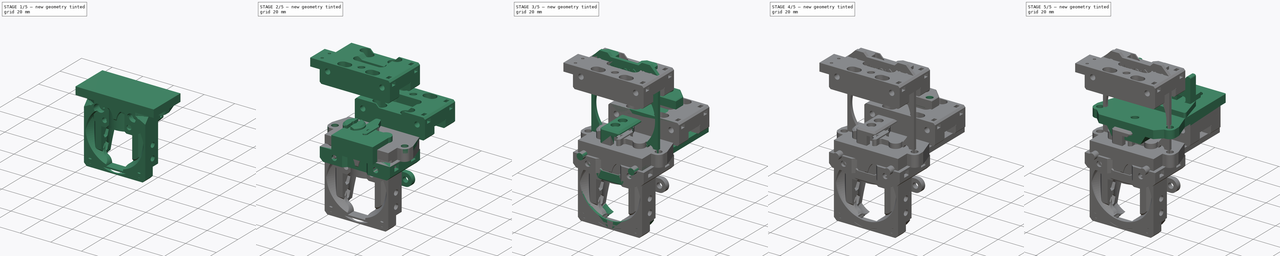
[diagram: build sequence overview — one tinted view per stage of 5, left to right]
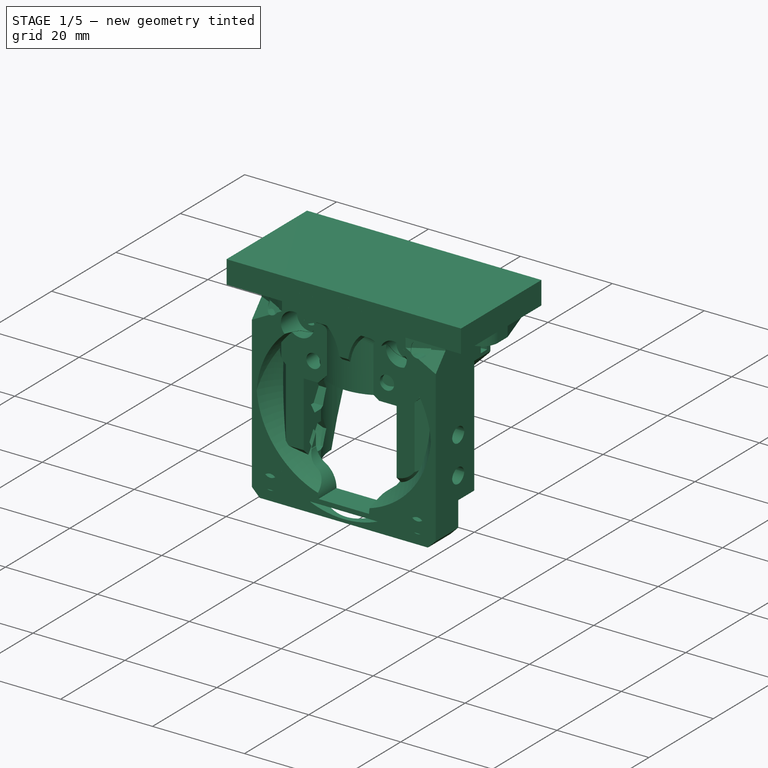
[diagram: stage 1 of 5 — iso view after this stage's code; geometry added in this stage tinted green]
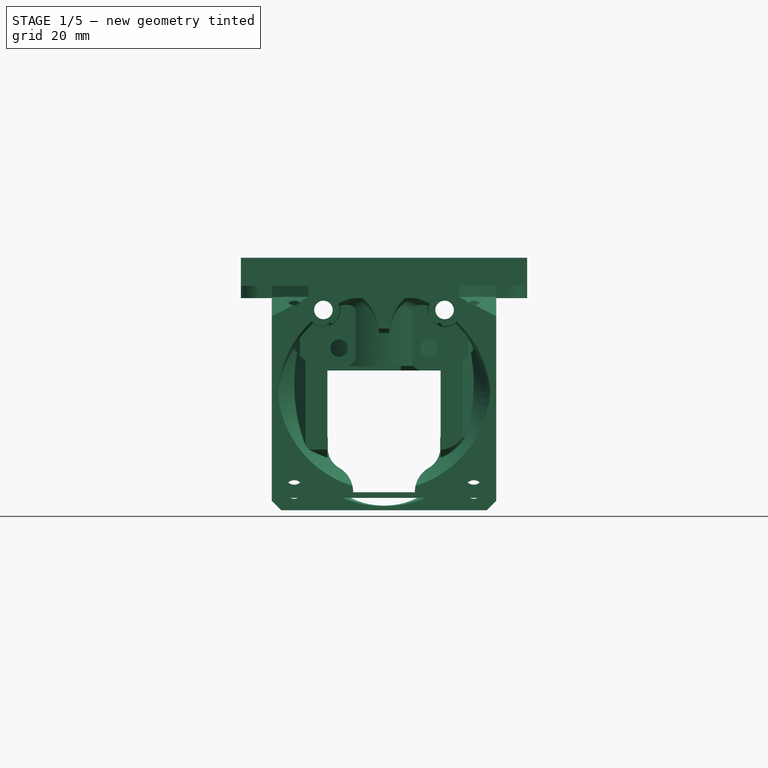
[diagram: stage 1 of 5 — front view after this stage's code; geometry added in this stage tinted green]
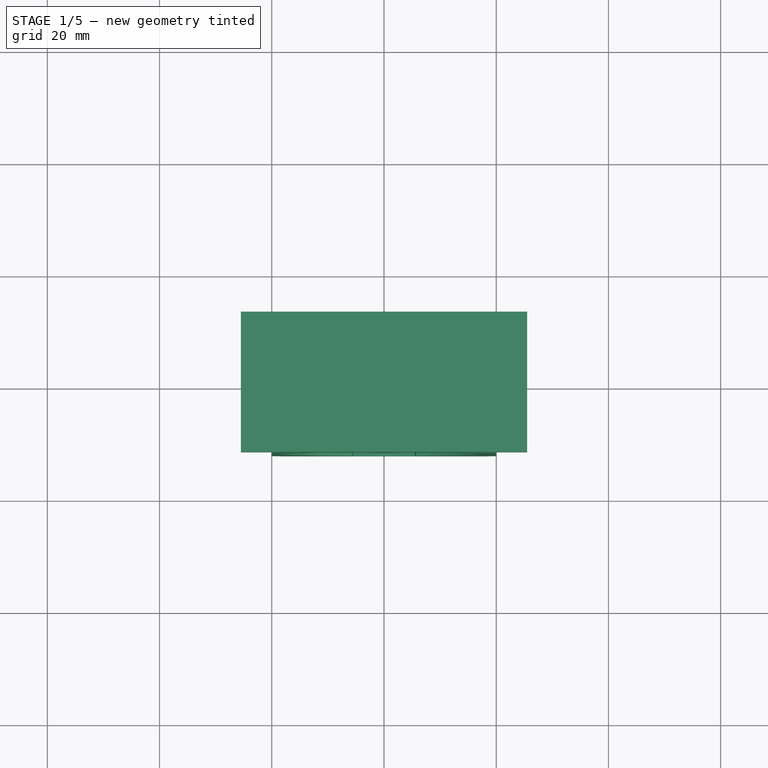
[diagram: stage 1 of 5 — top view after this stage's code; geometry added in this stage tinted green]
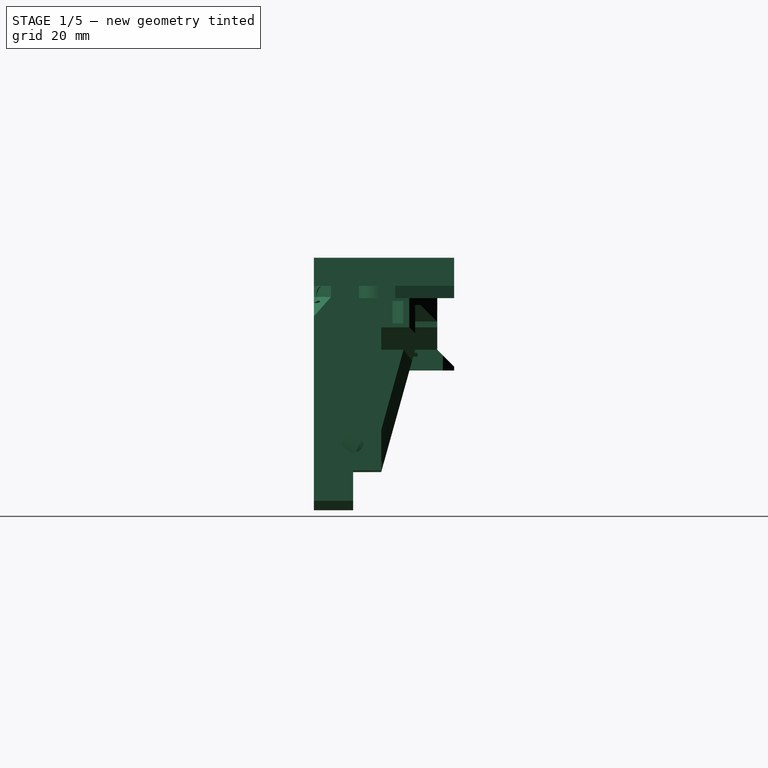
[diagram: stage 1 of 5 — right view after this stage's code; geometry added in this stage tinted green]
FCSTD DOCUMENT  (FreeCAD 0.19R24291 (Git))
Label: sherpa-mini
License: Other
LicenseURL: GPL3
objects: Part::Feature×90, Part::Cylinder×73, Part::Chamfer×62, Part::MultiFuse×62, Part::Cut×61, Part::Box×50, Sketcher::SketchObject×23, PartDesign::Pad×12, PartDesign::Pocket×11, Part::Fillet×9, PartDesign::Chamfer×7, Part::MultiCommon×6, Part::Refine×5, PartDesign::Body×5, PartDesign::Fillet×4, App::Part×2, PartDesign::FeatureBase×2, Part::Extrusion×1
note: 517 computed .brp shape members not serialized (recipe doc carries the construction recipe); baked Part::Feature solids carry a one-line shape summary decoded from their .brp

FEATURE [Part::Feature] Fusion036012039011002025018010027013001002002001002001029004001010001003  label="probe-slot003"
  shape: bbox 50 x 3.8 x 11.8 mm, 12 faces, 4 solids (baked)
FEATURE [Part::Cylinder] Cylinder045
  Angle = 360
  AttacherType = Attacher::AttachEngine3D
  Height = 10
  Placement = pos=(0,0,-8.2) rot=(0,0,1;0rad)
  Radius = 4
FEATURE [Part::Cylinder] Cylinder046
  Angle = 360
  AttacherType = Attacher::AttachEngine3D
  Height = 10
  Placement = pos=(5.65685,5.65685,0) rot=(0,0,1;0.785398rad)
  Radius = 2.4
FEATURE [Part::Cylinder] Cylinder047
  Angle = 360
  AttacherType = Attacher::AttachEngine3D
  Height = 10
  Placement = pos=(-5.65685,5.65685,0) rot=(0,0,1;0.785398rad)
  Radius = 2.4
FEATURE [Part::Feature] Part__Mirroring002003  label="Common003001 (Mirror #1)002"
  shape: bbox 23.77 x 23.2 x 42.81 mm, 58 faces (baked)
FEATURE [Part::Feature] Fusion036012039011002025018010027013001002002001002001029004001010001004
  shape: bbox 40.01 x 23.2 x 43.11 mm, 108 faces (baked)
FEATURE [Part::Box] Box030  label="right-select003"
  AttacherType = Attacher::AttachEngine3D
  Height = 45
  Length = 30
  Placement = pos=(0,-17,-41) rot=(0,0,1;0rad)
  Width = 36
FEATURE [Part::MultiCommon] Common004
  Shapes = -> [Fusion036012039011002025018010027013001002002001002001029004001010001004,Box030]
FEATURE [Part::MultiFuse] Fusion036012039011002025018010027013001002002001002001029004001010001002
  Shapes = -> [Common004,Part__Mirroring002003]
FEATURE [Part::Cut] Cut008004003004014002002005003004003002003001003001002001002002003043  label="dragon-base001"
  Base = -> Fusion036012039011002025018010027013001002002001002001029004001010001002
  Tool = -> Fusion036012039011002025018010027013001002002001002001029004001010001003
FEATURE [Part::Cylinder] Cylinder048
  Angle = 360
  AttacherType = Attacher::AttachEngine3D
  Height = 10
  Placement = pos=(-5.65685,-5.65685,0) rot=(0,0,1;0.785398rad)
  Radius = 2.4
FEATURE [Part::Cylinder] Cylinder049
  Angle = 360
  AttacherType = Attacher::AttachEngine3D
  Height = 10
  Placement = pos=(5.65685,-5.65685,0) rot=(0,0,1;0.785398rad)
  Radius = 2.4
FEATURE [Part::Cylinder] Cylinder050
  Angle = 360
  AttacherType = Attacher::AttachEngine3D
  Height = 10
  Placement = pos=(0,0,-8.2) rot=(0,0,1;0rad)
  Radius = 2.15
FEATURE [Part::Cut] Cut008004003004014002002005003004003002003001003001002001002002003044
  Base = -> Cylinder045
  Tool = -> Cylinder050
FEATURE [Part::MultiFuse] Fusion036012039011002025018010027013001002002001002001029004001010001006
  Placement = pos=(0,0,-5) rot=(0,0,1;0rad)
  Shapes = -> [Cylinder049,Cylinder046,Cylinder047,Cylinder048]
FEATURE [Part::Feature] Cut008004003004014002002005003004003002003001003001002001002002003050001  label="serpa-base-plate-compact-r003"
  Placement = pos=(0,0,-2) rot=(0,0,1;0rad)
  shape: bbox 51.01 x 25.01 x 5.008 mm, 34 faces (baked)
FEATURE [Part::Feature] Pad001  label="hex-slot"
  Placement = pos=(0,-22,5e-15) rot=(-1,0,0;1.5708rad)
  shape: bbox 5.603 x 50 x 6.47 mm, 8 faces (baked)
FEATURE [Part::Feature] Pad001002  label="hex-slot001"
  Placement = pos=(16,-22,-5.3) rot=(-1,0,0;1.5708rad)
  shape: bbox 5.603 x 50 x 6.47 mm, 8 faces (baked)
FEATURE [Part::Feature] Pad001003  label="hex-slot002"
  Placement = pos=(-16,-22,-5.3) rot=(-1,0,0;1.5708rad)
  shape: bbox 5.603 x 50 x 6.47 mm, 8 faces (baked)
FEATURE [Part::Box] Box039  label="Cube035"
  AttacherType = Attacher::AttachEngine3D
  Height = 1
  Length = 26
  Placement = pos=(-13,-15,-3) rot=(0,0,1;0rad)
  Width = 29
FEATURE [Part::MultiFuse] Fusion036012039011002025018010027013001002002001002001029004001010001005
  Shapes = -> [Cut008004003004014002002005003004003002003001003001002001002002003044,Cut008004003004014002002005003004003002003001003001002001002002003043]
FEATURE [Part::Chamfer] Chamfer005021077002006007019003024
  Base = -> Box039
  Edges = 1 edges: [Edge2 r1=0.9 r2=2]
FEATURE [Part::Chamfer] Chamfer005021077002006007019003025
  Base = -> Chamfer005021077002006007019003024
  Edges = 1 edges: [Edge15 r1=2 r2=0.9]
FEATURE [Part::MultiFuse] Fusion036012039011002025018010027013001002002001002001029004001010001014
  Placement = pos=(0,16.5,0) rot=(0,0,1;0rad)
  Shapes = -> [Pad001002,Pad001003]
FEATURE [Part::Chamfer] Chamfer005021077002006007019003026
  Base = -> Cut008004003004014002002005003004003002003001003001002001002002003050001
  Edges = 1 edges: [Edge42 r1=6.71 r2=3.65]
FEATURE [Part::Chamfer] Chamfer005021077002006007019003027
  Base = -> Chamfer005021077002006007019003026
  Edges = 1 edges: [Edge25 r1=6.71 r2=3.65]
FEATURE [Part::Cut] Cut008004003004014002002005003004003002003001003001002001002002003050002
  Base = -> Chamfer005021077002006007019003027
  Tool = -> Chamfer005021077002006007019003025
FEATURE [Part::Cut] Cut008004003004014002002005003004003002003001003001002001002002003050003
  Base = -> Cut008004003004014002002005003004003002003001003001002001002002003050002
  Tool = -> Fusion036012039011002025018010027013001002002001002001029004001010001006
FEATURE [Part::Cut] Cut008004003004014002002005003004003002003001003001002001002002003050004
  Base = -> Cut008004003004014002002005003004003002003001003001002001002002003050003
  Tool = -> Fusion036012039011002025018010027013001002002001002001029004001010001014
FEATURE [Part::MultiFuse] Fusion036012039011002025018010027013001002002001002001029004001010001015  label="dragon-face-r2-draf"
  Shapes = -> [Cut008004003004014002002005003004003002003001003001002001002002003050004,Fusion036012039011002025018010027013001002002001002001029004001010001005]
FEATURE [Part::Cylinder] Cylinder054
  Angle = 360
  AttacherType = Attacher::AttachEngine3D
  Height = 10
  Placement = pos=(-6,0,0) rot=(0,0,1;0rad)
  Radius = 2.5
FEATURE [Part::Cylinder] Cylinder055
  Angle = 360
  AttacherType = Attacher::AttachEngine3D
  Height = 10
  Placement = pos=(6,0,0) rot=(0,0,1;0rad)
  Radius = 2.5
FEATURE [Part::Cylinder] Cylinder056
  Angle = 360
  AttacherType = Attacher::AttachEngine3D
  Height = 10
  Placement = pos=(0,0,-8.2) rot=(0,0,1;0rad)
  Radius = 2.15
FEATURE [Part::Cylinder] Cylinder057
  Angle = 360
  AttacherType = Attacher::AttachEngine3D
  Height = 10
  Placement = pos=(0,0,-8.2) rot=(0,0,1;0rad)
  Radius = 3
FEATURE [Part::MultiFuse] Fusion036012039011002025018010027013001002002001002001029004001010001015002
  Placement = pos=(0,0,-3.9) rot=(0,0,1;0rad)
  Shapes = -> [Cylinder054,Cylinder055]
FEATURE [Part::Cut] Cut008004003004014002002005003004003002003001003001002001002002003050005
  Base = -> Cylinder057
  Tool = -> Cylinder056
FEATURE [Part::Feature] Part__Mirroring002004  label="Common001001 (Mirror #3)002"
  shape: bbox 20.01 x 24.77 x 40.61 mm, 60 faces (baked)
FEATURE [Part::Feature] Fusion036012039011002025018010027013001002002001002001029004001010001015006
  shape: bbox 40.01 x 24.77 x 40.61 mm, 109 faces (baked)
FEATURE [Part::Feature] Fusion036012039011002025018010027013001002002001002001029004001010001015007  label="probe-slot004"
  Placement = pos=(0,0,0.5) rot=(0,0,1;0rad)
  shape: bbox 50 x 3.8 x 11.8 mm, 12 faces, 4 solids (baked)
FEATURE [Part::Box] Box040  label="right-select004"
  AttacherType = Attacher::AttachEngine3D
  Height = 45
  Length = 30
  Placement = pos=(0,-17,-41) rot=(0,0,1;0rad)
  Width = 36
FEATURE [Part::MultiCommon] Common005
  Shapes = -> [Fusion036012039011002025018010027013001002002001002001029004001010001015006,Box040]
FEATURE [Part::MultiFuse] Fusion036012039011002025018010027013001002002001002001029004001010001015005
  Shapes = -> [Part__Mirroring002004,Common005]
FEATURE [Part::Cut] Cut008004003004014002002005003004003002003001003001002001002002003050006  label="mosquito-base001"
  Base = -> Fusion036012039011002025018010027013001002002001002001029004001010001015005
  Tool = -> Fusion036012039011002025018010027013001002002001002001029004001010001015007
FEATURE [Part::MultiFuse] Fusion036012039011002025018010027013001002002001002001029004001010001015003
  Shapes = -> [Cut008004003004014002002005003004003002003001003001002001002002003050006,Cut008004003004014002002005003004003002003001003001002001002002003050005]
FEATURE [Part::Feature] Cut008004003004014002002005003004003002003001003001002001002002003050007  label="serpa-base-plate-compact-r004"
  Placement = pos=(0,0,-2) rot=(0,0,1;0rad)
  shape: bbox 51.01 x 25.01 x 5.008 mm, 34 faces (baked)
FEATURE [Part::Cut] Cut008004003004014002002005003004003002003001003001002001002002003050008
  Base = -> Cut008004003004014002002005003004003002003001003001002001002002003050007
  Tool = -> Fusion036012039011002025018010027013001002002001002001029004001010001015002
FEATURE [Part::Chamfer] Chamfer005021077002006007019003032002
  Base = -> Cut008004003004014002002005003004003002003001003001002001002002003050008
  Edges = 1 edges: [Edge40 r1=3.05 r2=6.56]
FEATURE [Part::Chamfer] Chamfer005021077002006007019003032003
  Base = -> Chamfer005021077002006007019003032002
  Edges = 1 edges: [Edge33 r1=6.56 r2=3.05]
FEATURE [Part::Cylinder] Cylinder058
  Angle = 360
  AttacherType = Attacher::AttachEngine3D
  Height = 34
  Placement = pos=(16,-16,-2.8) rot=(-1,0,0;1.5708rad)
  Radius = 1.65
FEATURE [Part::Feature] Fusion036012039011002025018010027013001002002001002001029004001010001015008001  label="hex-slot-dual001"
  Placement = pos=(0,16.5,0) rot=(0,0,1;0rad)
  shape: bbox 37.6 x 50 x 6.47 mm, 16 faces, 2 solids (baked)
FEATURE [Part::Cut] Cut008004003004014002002005003004003002003001003001002001002002003050009
  Base = -> Chamfer005021077002006007019003032003
  Tool = -> Fusion036012039011002025018010027013001002002001002001029004001010001015008001
FEATURE [Part::Cylinder] Cylinder059
  Angle = 360
  AttacherType = Attacher::AttachEngine3D
  Height = 34
  Placement = pos=(-16,-16,-2.8) rot=(-1,0,0;1.5708rad)
  Radius = 1.65
FEATURE [Part::MultiFuse] Fusion036012039011002025018010027013001002002001002001029004001010001015008002
  Shapes = -> [Cylinder059,Cylinder058]
FEATURE [Part::Cut] Cut008004003004014002002005003004003002003001003001002001002002003050010
  Base = -> Cut008004003004014002002005003004003002003001003001002001002002003050009
  Tool = -> Fusion036012039011002025018010027013001002002001002001029004001010001015008002
FEATURE [Part::Box] Box041  label="Cube036"
  AttacherType = Attacher::AttachEngine3D
  Height = 2
  Length = 26
  Placement = pos=(-13,-13,-3) rot=(0,0,1;0rad)
  Width = 10
FEATURE [Part::Chamfer] Chamfer005021077002006007019003032004
  Base = -> Box041
  Edges = 1 edges: [Edge2 r1=1.9 r2=4]
FEATURE [Part::Chamfer] Chamfer005021077002006007019003032005
  Base = -> Chamfer005021077002006007019003032004
  Edges = 1 edges: [Edge15 r1=4 r2=1.9]
FEATURE [Part::Cut] Cut008004003004014002002005003004003002003001003001002001002002003050011
  Base = -> Cut008004003004014002002005003004003002003001003001002001002002003050010
  Tool = -> Chamfer005021077002006007019003032005
FEATURE [Part::MultiFuse] Fusion036012039011002025018010027013001002002001002001029004001010001015008003  label="mosquito-face-r2-draf"
  Shapes = -> [Cut008004003004014002002005003004003002003001003001002001002002003050011,Fusion036012039011002025018010027013001002002001002001029004001010001015003]
FEATURE [Part::Box] Box052  label="Cube047"
  AttacherType = Attacher::AttachEngine3D
  Height = 5
  Length = 51
  Placement = pos=(-25.5,-12,-1) rot=(0,0,1;0rad)
  Width = 25
FEATURE [Part::Box] Box053  label="Cube048"
  AttacherType = Attacher::AttachEngine3D
  Height = 5
  Length = 5.5
  Placement = pos=(-25.5,-12,-1) rot=(0,0,1;0rad)
  Width = 8
FEATURE [Part::Box] Box054  label="Cube049"
  AttacherType = Attacher::AttachEngine3D
  Height = 5
  Length = 5.5
  Placement = pos=(20,-12,-1) rot=(0,0,1;0rad)
  Width = 8
FEATURE [Part::MultiFuse] Fusion036012039011002025018010027013001002002001002001029004001010001015008003008006
  Shapes = -> [Box054,Box053]
FEATURE [Part::Feature] Chamfer005021077002006007019003032018008001  label="sherpa-mount-plate-base004"
  Placement = pos=(0,0,-2.2) rot=(0,0,1;0rad)
  shape: bbox 51 x 25 x 5.003 mm, 26 faces (baked)
FEATURE [Part::Cylinder] Cylinder076
  Angle = 360
  AttacherType = Attacher::AttachEngine3D
  Height = 10
  Placement = pos=(8.5,0,0) rot=(0,0,1;0rad)
  Radius = 2.7
FEATURE [Part::Cylinder] Cylinder077
  Angle = 360
  AttacherType = Attacher::AttachEngine3D
  Height = 10
  Placement = pos=(-8.5,0,0) rot=(0,0,1;0rad)
  Radius = 2.7
FEATURE [Part::Box] Box055  label="Cube050"
  AttacherType = Attacher::AttachEngine3D
  Height = 10
  Length = 13
  Placement = pos=(-21,-14,-4) rot=(0,0,1;0rad)
  Width = 10
FEATURE [Part::Cylinder] Cylinder078
  Angle = 360
  AttacherType = Attacher::AttachEngine3D
  Height = 10
  Placement = pos=(-21.9,0,-5) rot=(0,0,1;0rad)
  Radius = 2
FEATURE [Part::Cylinder] Cylinder079
  Angle = 360
  AttacherType = Attacher::AttachEngine3D
  Height = 10
  Placement = pos=(21.9,0,-5) rot=(0,0,1;0rad)
  Radius = 2
FEATURE [Part::Box] Box056  label="Cube051"
  AttacherType = Attacher::AttachEngine3D
  Height = 10
  Length = 13
  Placement = pos=(8,-14,-4) rot=(0,0,1;0rad)
  Width = 10
FEATURE [Part::MultiFuse] Fusion036012039011002025018010027013001002002001002001029004001010001015008003008007
  Shapes = -> [Box055,Box056]
FEATURE [Part::Cylinder] Cylinder080
  Angle = 360
  AttacherType = Attacher::AttachEngine3D
  Height = 37
  Placement = pos=(-10.8,-13,-5.3) rot=(1,0,0;1.5708rad)
  Radius = 3.2
FEATURE [Part::Cylinder] Cylinder081
  Angle = 360
  AttacherType = Attacher::AttachEngine3D
  Height = 37
  Placement = pos=(10.8,-13,-5.3) rot=(1,0,0;1.5708rad)
  Radius = 3.2
FEATURE [Part::MultiFuse] Fusion036012039011002025018010027013001002002001002001029004001010001015008003008008
  Placement = pos=(0,30,0) rot=(0,0,1;0rad)
  Shapes = -> [Cylinder081,Cylinder080]
FEATURE [Part::Cut] Cut008004003004014002002005003004003002003001003001002001002002003050032
  Base = -> Chamfer005021077002006007019003032018008001
  Tool = -> Fusion036012039011002025018010027013001002002001002001029004001010001015008003008007
FEATURE [Part::Cut] Cut008004003004014002002005003004003002003001003001002001002002003050033
  Base = -> Cut008004003004014002002005003004003002003001003001002001002002003050032
  Tool = -> Fusion036012039011002025018010027013001002002001002001029004001010001015008003008008
FEATURE [Part::MultiFuse] Fusion036012039011002025018010027013001002002001002001029004001010001015008003008009
  Placement = pos=(0,0,-5.6) rot=(0,0,1;0rad)
  Shapes = -> [Cylinder077,Cylinder076]
FEATURE [Part::Cut] Cut008004003004014002002005003004003002003001003001002001002002003050034
  Base = -> Cut008004003004014002002005003004003002003001003001002001002002003050033
  Tool = -> Fusion036012039011002025018010027013001002002001002001029004001010001015008003008009
FEATURE [Part::Chamfer] Chamfer005021077002006007019003032018008002
  Base = -> Cut008004003004014002002005003004003002003001003001002001002002003050034
  Edges = 4 edges r=1: [Edge51,Edge52,Edge56,Edge60]
FEATURE [Part::Chamfer] Chamfer005021077002006007019003032018008003
  Base = -> Chamfer005021077002006007019003032018008002
  Edges = 23 edges r=0.4: [Edge1,Edge2,Edge3,Edge4,Edge5,Edge6,Edge7,Edge8,Edge9,Edge10,Edge11,Edge12,Edge13,Edge14,Edge15,Edge16,Edge17,Edge18,Edge19,Edge20,Edge21,Edge22,Edge23]
FEATURE [Part::MultiFuse] Fusion036012039011002025018010027013001002002001002001029004001010001015008003008010
  Placement = pos=(0,0,1.8) rot=(0,0,1;0rad)
  Shapes = -> [Cylinder078,Cylinder079]
FEATURE [Part::Cut] Cut008004003004014002002005003004003002003001003001002001002002003050035
  Base = -> Part__Feature003
  Tool = -> Fusion036012039011002025018010027013001002002001002001029004001010001015008003008010
FEATURE [Part::MultiFuse] Fusion036012039011002025018010027013001002002001002001029004001010001015008003008011
  Shapes = -> [Chamfer005021077002006007019003032018008003,Cut008004003004014002002005003004003002003001003001002001002002003050035]
FEATURE [Part::Refine] Fusion036012039011002025018010027013001002002001002001029004001010001015008003008011001
  Placement = pos=(0,0,0) rot=(0,1,0;3.14159rad)
  Source = -> Fusion036012039011002025018010027013001002002001002001029004001010001015008003008011
FEATURE [Part::Refine] Fusion036012039011002025018010027013001002002001002001029004001010001015008003008011002  label="dragon-face-r2-draf001"
  Source = -> Fusion036012039011002025018010027013001002002001002001029004001010001015
FEATURE [Part::Chamfer] Chamfer005021077002006007019003032018008004  label="dragon-face-r2"
  Base = -> Fusion036012039011002025018010027013001002002001002001029004001010001015008003008011002
  Edges = 25 edges r=0.4: [Edge7,Edge8,Edge9,Edge10,Edge11,Edge12,Edge13,Edge14,Edge15,Edge16,Edge17,Edge18,Edge19,Edge20,Edge21,Edge22,Edge23,Edge24,Edge25,Edge26,Edge27,Edge28,Edge29,Edge30,Edge31]
FEATURE [Part::Chamfer] Chamfer005021077002006007019003032018008005  label="mosquito-face-r2"
  Base = -> Fusion036012039011002025018010027013001002002001002001029004001010001015008003001
  Edges = 23 edges r=0.4: [Edge3,Edge10,Edge49,Edge50,Edge51,Edge52,Edge53,Edge54,Edge55,Edge56,Edge57,Edge58,Edge59,Edge60,Edge61,Edge62,Edge63,Edge64,Edge65,Edge66,Edge67,Edge68,Edge69]
FEATURE [Part::Feature] Chamfer005021077002006007019003032018008005001  label="mosquito-face-r003"
  shape: bbox 51.01 x 27.78 x 40.81 mm, 154 faces (baked)
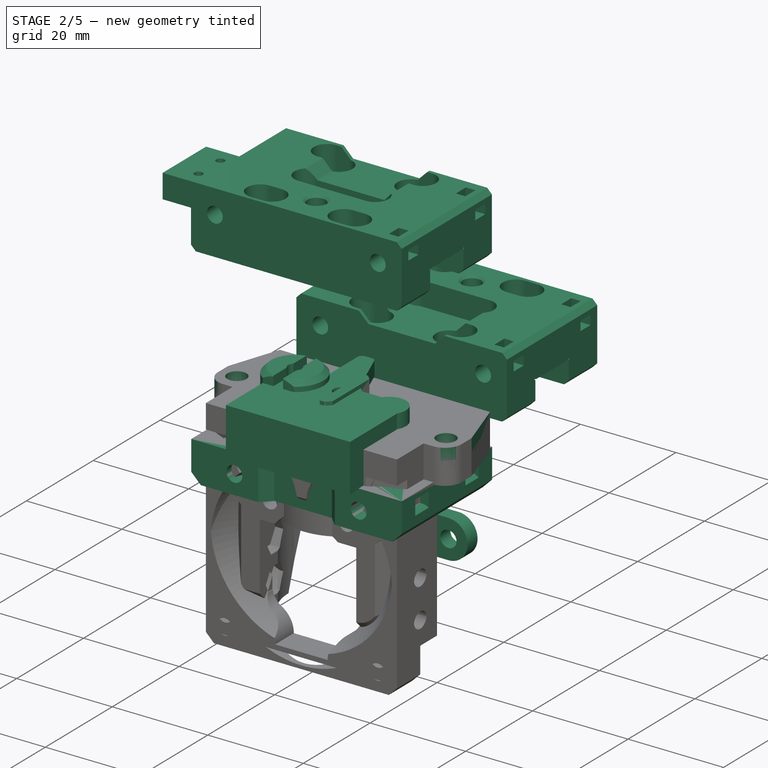
[diagram: stage 2 of 5 — iso view after this stage's code; geometry added in this stage tinted green]
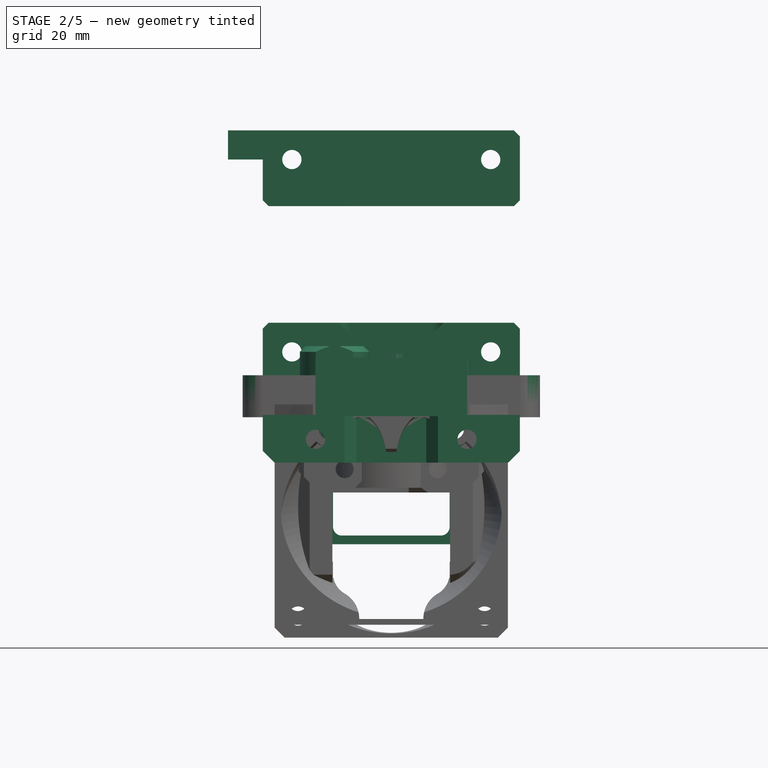
[diagram: stage 2 of 5 — front view after this stage's code; geometry added in this stage tinted green]
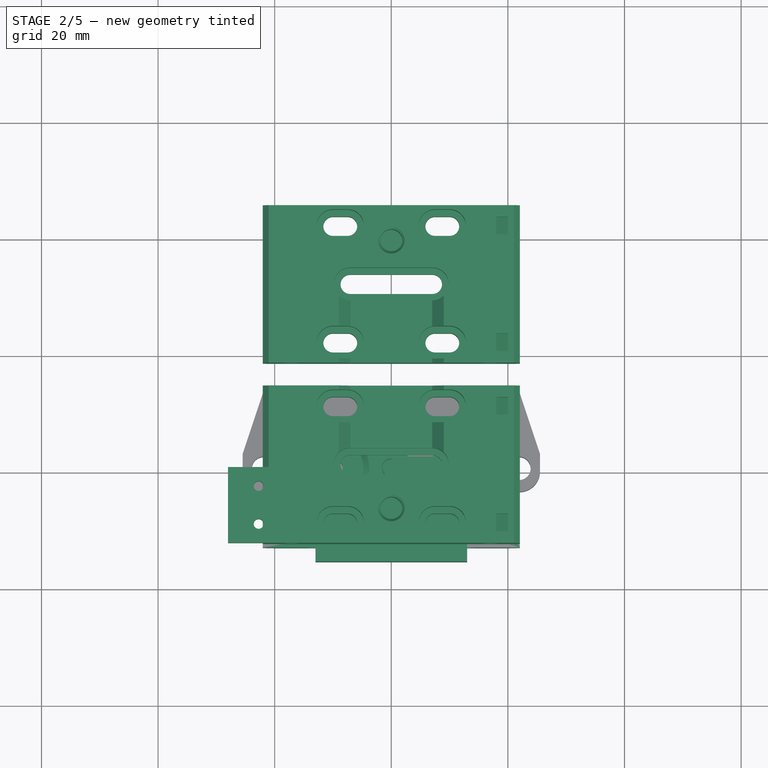
[diagram: stage 2 of 5 — top view after this stage's code; geometry added in this stage tinted green]
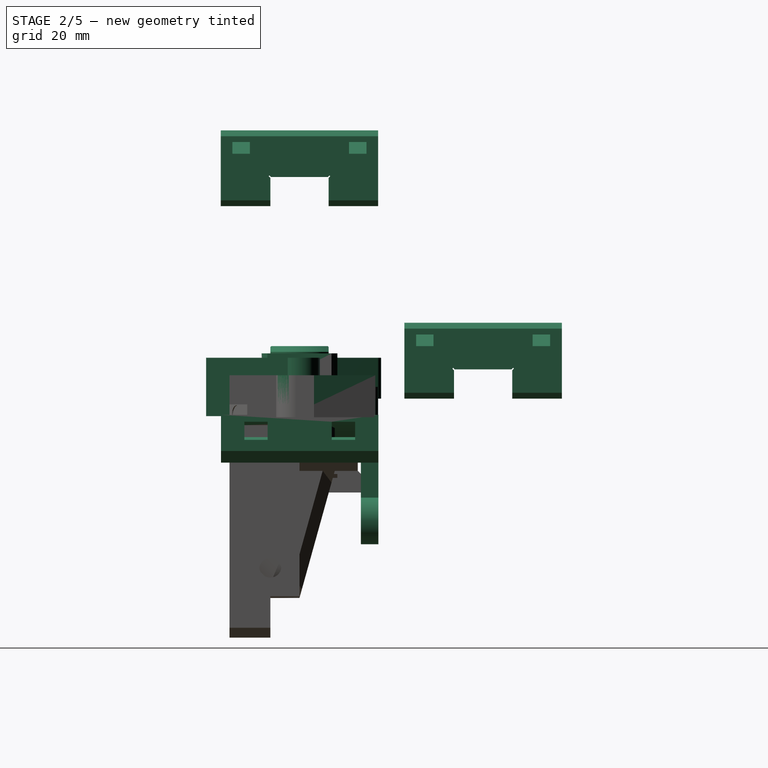
[diagram: stage 2 of 5 — right view after this stage's code; geometry added in this stage tinted green]
FEATURE [Part::Refine] Fusion036012039011002025018010027013001002002001002001029004001010001015008003001  label="mosquito-face-r2-draf001"
  Source = -> Fusion036012039011002025018010027013001002002001002001029004001010001015008003
FEATURE [Part::Box] Box046  label="Cube041"
  AttacherType = Attacher::AttachEngine3D
  Height = 5
  Length = 18
  Placement = pos=(-9,-3,-6) rot=(0,0,1;0rad)
  Width = 12
FEATURE [Part::Cylinder] Cylinder065
  Angle = 360
  AttacherType = Attacher::AttachEngine3D
  Height = 10
  Placement = pos=(-9,-3.5,0) rot=(0,0,1;0rad)
  Radius = 2
FEATURE [Part::Cylinder] Cylinder066
  Angle = 360
  AttacherType = Attacher::AttachEngine3D
  Height = 10
  Placement = pos=(9,-3.5,0) rot=(0,0,1;0rad)
  Radius = 2
FEATURE [Part::MultiFuse] Fusion036012039011002025018010027013001002002001002001029004001010001015008003004
  Placement = pos=(0,0,-8) rot=(0,0,1;0rad)
  Shapes = -> [Cylinder066,Cylinder065]
FEATURE [Part::Feature] Cut008004003004014002002005003004003002003001003001002001002002003050020  label="cooper-head-base002"
  shape: bbox 40.01 x 26.05 x 46.11 mm, 140 faces (baked)
FEATURE [Part::Cut] Cut008004003004014002002005003004003002003001003001002001002002003050015
  Base = -> Box046
  Tool = -> Cut008004003004014002002005003004003002003001003001002001002002003050020
FEATURE [Part::Box] Box048  label="Cube043"
  AttacherType = Attacher::AttachEngine3D
  Height = 10
  Length = 26
  Placement = pos=(-13,-16,-3) rot=(0,0,1;0rad)
  Width = 14
FEATURE [Part::Feature] Cut008004003004014002002005003004003002003001003001002001002002003038001  label="top-plate-compact-r002"
  shape: bbox 44.1 x 27 x 13 mm, 88 faces (baked)
FEATURE [Part::Box] Box049  label="Cube044"
  AttacherType = Attacher::AttachEngine3D
  Height = 10
  Length = 18
  Placement = pos=(-9,16,11) rot=(0,0,1;0rad)
  Width = 15
FEATURE [Part::Chamfer] Chamfer005021077002006007019003032011
  Base = -> Box049
  Edges = 2 edges r=2: [Edge4,Edge8]
FEATURE [Part::Cut] Cut008004003004014002002005003004003002003001003001002001002002003050026  label="top-plate-compacr-r2"
  Base = -> Cut008004003004014002002005003004003002003001003001002001002002003038001
  Tool = -> Chamfer005021077002006007019003032011
FEATURE [Part::Feature] Part__Feature112001134  label="bottom_mgn12_short_duct001"
  Placement = pos=(0.00577366,-13.4565,-6.88873) rot=(0,0,1;0rad)
  shape: bbox 44.1 x 27 x 22.2 mm, 66 faces (baked)
FEATURE [Part::Cylinder] Cylinder069
  Angle = 360
  AttacherType = Attacher::AttachEngine3D
  Height = 6
  Placement = pos=(7,7.5,-3.29) rot=(0,0,1;0rad)
  Radius = 1.8
FEATURE [Part::Cylinder] Cylinder070
  Angle = 360
  AttacherType = Attacher::AttachEngine3D
  Height = 6
  Placement = pos=(7,-7.5,-3.29) rot=(0,0,1;0rad)
  Radius = 1.8
FEATURE [Part::Cylinder] Cylinder071
  Angle = 360
  AttacherType = Attacher::AttachEngine3D
  Height = 1
  Placement = pos=(7,-7.5,-3.29) rot=(0,0,1;0rad)
  Radius = 3
FEATURE [Part::Cylinder] Cylinder072
  Angle = 360
  AttacherType = Attacher::AttachEngine3D
  Height = 1
  Placement = pos=(7,7.5,-3.29) rot=(0,0,1;0rad)
  Radius = 3
FEATURE [Part::MultiFuse] Fusion036012039011002025018010027013001002002001002001029004001010001015008003008002
  Shapes = -> [Cylinder072,Cylinder071]
FEATURE [Part::Chamfer] Chamfer005021077002006007019003032012
  Base = -> Fusion036012039011002025018010027013001002002001002001029004001010001015008003008002
  Edges = 2 edges r=0.5: [Edge1,Edge4]
  Placement = pos=(0,0.04,0) rot=(0,0,1;0rad)
FEATURE [Part::MultiFuse] Fusion036012039011002025018010027013001002002001002001029004001010001015008003008003
  Placement = pos=(0,0,-5) rot=(0,0,1;0rad)
  Shapes = -> [Cylinder070,Cylinder069]
FEATURE [Part::Box] Box050  label="Cube045"
  AttacherType = Attacher::AttachEngine3D
  Height = 10
  Length = 5
  Placement = pos=(-7,-10.87,-3.79) rot=(0,0,1;0rad)
  Width = 22
FEATURE [Part::MultiFuse] Fusion036012039011002025018010027013001002002001002001029004001010001015008003008004
  Shapes = -> [Chamfer005021077002006007019003032012,Part__Feature112001134]
FEATURE [Part::Cut] Cut008004003004014002002005003004003002003001003001002001002002003050027
  Base = -> Fusion036012039011002025018010027013001002002001002001029004001010001015008003008004
  Tool = -> Fusion036012039011002025018010027013001002002001002001029004001010001015008003008003
FEATURE [Part::Chamfer] Chamfer005021077002006007019003032013
  Base = -> Box050
  Edges = 4 edges r=1: [Edge4,Edge8,Edge9,Edge11]
FEATURE [Part::Cut] Cut008004003004014002002005003004003002003001003001002001002002003050028  label="bottom-plate-sensor-mount"
  Base = -> Cut008004003004014002002005003004003002003001003001002001002002003050027
  Tool = -> Chamfer005021077002006007019003032013
FEATURE [Part::Feature] Part__Mirroring001  label="top-plate-compacr-r004 (Mirror #1)001"
  Placement = pos=(0,0,0) rot=(0,0,1;3.14159rad)
  shape: bbox 44.1 x 27 x 13 mm, 93 faces (baked)
FEATURE [PartDesign::FeatureBase] BaseFeature
  BaseFeature = -> Part__Mirroring001
FEATURE [Sketcher::SketchObject] Sketch
  FullyConstrained = true
  MapMode = 5
  Placement = pos=(-2.8e-15,-6e-15,46) rot=(0,0,1;0rad)
  Support = -> [BaseFeature]
  sketch-geometry (4):
    g0: LineSegment StartX=-28 StartY=-0.5 StartZ=0 EndX=-20 EndY=-0.5 EndZ=0
    g1: LineSegment StartX=-20 StartY=-0.5 StartZ=0 EndX=-20 EndY=-13.5 EndZ=0
    g2: LineSegment StartX=-20 StartY=-13.5 StartZ=0 EndX=-28 EndY=-13.5 EndZ=0
    g3: LineSegment StartX=-28 StartY=-13.5 StartZ=0 EndX=-28 EndY=-0.5 EndZ=0
  constraints (12):
    c: Coincident(g0,g1)
    c: Coincident(g1,g2)
    c: Coincident(g2,g3)
    c: Coincident(g3,g0)
    c: Horizontal(g0)
    c: Horizontal(g2)
    c: Vertical(g1)
    c: Vertical(g3)
    c: DistanceY(g3,g3) = 13
    c: DistanceY(g1,g-1) = 13.5
    c: DistanceX(g0,g-1) = 20
    c: DistanceX(g0,g0) = 8
FEATURE [PartDesign::Pad] Pad
  BaseFeature = -> BaseFeature
  Direction = (1,1,1)
  Length = 5
  Length2 = 100
  Profile = -> Sketch
  Reversed = true
  Type = 0
FEATURE [Sketcher::SketchObject] Sketch001
  FullyConstrained = true
  MapMode = 5
  Placement = pos=(0,0,46) rot=(0,0,1;0rad)
  Support = -> [Pad]
  sketch-geometry (2):
    g0: Circle CenterX=-22.75 CenterY=-3.75 CenterZ=0 NormalX=0 NormalY=0 NormalZ=1 AngleXU=0 Radius=0.85
    g1: Circle CenterX=-22.75 CenterY=-10.25 CenterZ=0 NormalX=0 NormalY=0 NormalZ=1 AngleXU=0 Radius=0.85
  constraints (6):
    c: DistanceX(g1,g0) = 0
    c: DistanceY(g1,g0) = 6.5
    c: Radius(g0) = 0.85
    c: Radius(g1) = 0.85
    c: DistanceX(g0,g-1) = 22.75
    c: DistanceY(g0,g-1) = 3.75
FEATURE [PartDesign::Pocket] Pocket
  BaseFeature = -> Pad
  Length = 5
  Length2 = 100
  Profile = -> Sketch001
  Type = 0
FEATURE [PartDesign::Body] Body  label="top-palte-compact-with-endstop-mount"
  BaseFeature = -> Part__Mirroring001
  Group = -> [BaseFeature,Sketch,Pad,Sketch001,Pocket]
  Origin = -> Origin208
  Tip = -> Pocket
FEATURE [Sketcher::SketchObject] Sketch002
  FullyConstrained = true
  MapMode = 5
  Support = -> [XY_Plane003]
  sketch-geometry (6):
    g0: LineSegment StartX=0 StartY=6.5 StartZ=0 EndX=12 EndY=6.5 EndZ=0
    g1: LineSegment StartX=12 StartY=6.5 StartZ=0 EndX=12 EndY=-6.5 EndZ=0
    g2: LineSegment StartX=12 StartY=-6.5 StartZ=0 EndX=0 EndY=-6.5 EndZ=0
    g3: LineSegment StartX=0 StartY=-6.5 StartZ=0 EndX=0 EndY=6.5 EndZ=0
    g4: Circle CenterX=6.75 CenterY=3.25 CenterZ=0 NormalX=0 NormalY=0 NormalZ=1 AngleXU=0 Radius=0.95
    g5: Circle CenterX=6.75 CenterY=-3.25 CenterZ=0 NormalX=0 NormalY=0 NormalZ=1 AngleXU=0 Radius=0.95
  constraints (18):
    c: Coincident(g0,g1)
    c: Coincident(g1,g2)
    c: Coincident(g2,g3)
    c: Coincident(g3,g0)
    c: Horizontal(g0)
    c: Horizontal(g2)
    c: Vertical(g1)
    c: Vertical(g3)
    c: DistanceX(g0,g0) = 12
    c: DistanceY(g1,g1) = 13
    c: DistanceY(g-1,g0) = 6.5
    c: DistanceX(g0,g-1) = 0
    c: DistanceY(g5,g4) = 6.5
    c: DistanceX(g5,g4) = 0
    c: DistanceX(g5,g0) = 5.25
    c: DistanceY(g-1,g4) = 3.25
    c: Radius(g4) = 0.95
    c: Radius(g5) = 0.95
FEATURE [PartDesign::Pad] Pad001007
  Direction = (1,1,1)
  Length = 2
  Length2 = 100
  Profile = -> Sketch002
  Type = 0
FEATURE [Sketcher::SketchObject] Sketch003
  FullyConstrained = true
  MapMode = 5
  Placement = pos=(0,0,2) rot=(0,0,1;0rad)
  Support = -> [Pad001007]
  sketch-geometry (4):
    g0: LineSegment StartX=0 StartY=6.5 StartZ=0 EndX=2 EndY=6.5 EndZ=0
    g1: LineSegment StartX=2 StartY=6.5 StartZ=0 EndX=2 EndY=-6.5 EndZ=0
    g2: LineSegment StartX=2 StartY=-6.5 StartZ=0 EndX=0 EndY=-6.5 EndZ=0
    g3: LineSegment StartX=0 StartY=-6.5 StartZ=0 EndX=0 EndY=6.5 EndZ=0
  constraints (12):
    c: Coincident(g0,g1)
    c: Coincident(g1,g2)
    c: Coincident(g2,g3)
    c: Coincident(g3,g0)
    c: Horizontal(g0)
    c: Horizontal(g2)
    c: Vertical(g1)
    c: Vertical(g3)
    c: DistanceX(g0,g0) = 2
    c: DistanceX(g-1,g0) = 0
    c: DistanceY(g-1,g0) = 6.5
    c: DistanceY(g1,g1) = 13
FEATURE [PartDesign::Pad] Pad002
  BaseFeature = -> Pad001007
  Direction = (1,1,1)
  Length = 5.75
  Length2 = 100
  Profile = -> Sketch003
  Type = 0
FEATURE [Sketcher::SketchObject] Sketch004
  FullyConstrained = true
  MapMode = 5
  Placement = pos=(0,0,0) rot=(1,0,0;3.14159rad)
  Support = -> [Pad002]
  sketch-geometry (2):
    g0: Circle CenterX=6.75 CenterY=3.25 CenterZ=0 NormalX=0 NormalY=0 NormalZ=1 AngleXU=0 Radius=2.6
    g1: Circle CenterX=6.75 CenterY=-3.25 CenterZ=0 NormalX=0 NormalY=0 NormalZ=1 AngleXU=0 Radius=2.6
  constraints (6):
    c: Radius(g0) = 2.6
    c: Radius(g1) = 2.6
    c: DistanceX(g0,g1) = 0
    c: DistanceX(g-1,g0) = 6.75
    c: DistanceY(g-1,g0) = 3.25
    c: DistanceY(g1,g0) = 6.5
FEATURE [PartDesign::Pocket] Pocket001
  BaseFeature = -> Pad002
  Length = 1
  Length2 = 100
  Profile = -> Sketch004
  Type = 0
FEATURE [PartDesign::Chamfer] Chamfer005021077002006007019003032014
  Angle = 45
  Base = -> Pocket001 [Edge7]
  BaseFeature = -> Pocket001
  ChamferType = 0
  FlipDirection = false
  Size = 1
  Size2 = 1
  SupportTransform = false
FEATURE [PartDesign::Chamfer] Chamfer001
  Angle = 45
  Base = -> Chamfer005021077002006007019003032014 [Edge13,Edge28]
  BaseFeature = -> Chamfer005021077002006007019003032014
  ChamferType = 0
  FlipDirection = false
  Size = 1
  Size2 = 1
  SupportTransform = false
FEATURE [PartDesign::Chamfer] Chamfer002
  Angle = 45
  Base = -> Chamfer001 [Edge24,Edge34]
  BaseFeature = -> Chamfer001
  ChamferType = 0
  FlipDirection = false
  Size = 0.4
  Size2 = 1
  SupportTransform = false
FEATURE [PartDesign::Body] Body002  label="endstop-cap-compact"
  Group = -> [Sketch002,Pad001007,Sketch003,Pad002,Sketch004,Pocket001,Chamfer005021077002006007019003032014,Chamfer001,Chamfer002]
  Origin = -> Origin003
  Tip = -> Chamfer002
FEATURE [Sketcher::SketchObject] Sketch005
  FullyConstrained = true
  MapMode = 5
  Support = -> [XY_Plane209]
  sketch-geometry (6):
    g0: LineSegment StartX=-5.75 StartY=14 StartZ=0 EndX=-5.75 EndY=-2 EndZ=0
    g1: LineSegment StartX=-5.75 StartY=-2 StartZ=0 EndX=12 EndY=-2 EndZ=0
    g2: LineSegment StartX=12 StartY=-2 StartZ=0 EndX=12 EndY=2 EndZ=0
    g3: LineSegment StartX=12 StartY=2 StartZ=0 EndX=2 EndY=2 EndZ=0
    g4: LineSegment StartX=2 StartY=2 StartZ=0 EndX=-2.75 EndY=14 EndZ=0
    g5: LineSegment StartX=-2.75 StartY=14 StartZ=0 EndX=-5.75 EndY=14 EndZ=0
  constraints (18):
    c: Vertical(g0)
    c: Coincident(g0,g1)
    c: Horizontal(g1)
    c: Coincident(g1,g2)
    c: Vertical(g2)
    c: Coincident(g2,g3)
    c: Horizontal(g3)
    c: Coincident(g3,g4)
    c: Coincident(g4,g5)
    c: Coincident(g5,g0)
    c: Horizontal(g5)
    c: DistanceX(g0,g-1) = 5.75
    c: DistanceY(g0,g-1) = 2
    c: DistanceX(g-1,g1) = 12
    c: DistanceY(g-1,g0) = 14
    c: DistanceX(g5,g5) = 3
    c: DistanceX(g3,g3) = 10
    c: DistanceY(g2,g2) = 4
FEATURE [PartDesign::Pad] Pad001008
  Direction = (1,1,1)
  Length = 7
  Length2 = 100
  Profile = -> Sketch005
  Type = 0
FEATURE [Sketcher::SketchObject] Sketch006
  FullyConstrained = true
  MapMode = 5
  Placement = pos=(0,0,7) rot=(0,0,1;0rad)
  Support = -> [Pad001008]
  sketch-geometry (2):
    g0: Circle CenterX=0 CenterY=0 CenterZ=0 NormalX=0 NormalY=0 NormalZ=1 AngleXU=0 Radius=3.5
    g1: Circle CenterX=10 CenterY=0 CenterZ=0 NormalX=0 NormalY=0 NormalZ=1 AngleXU=0 Radius=3.5
  constraints (6):
    c: DistanceX(g-1,g0) = 0
    c: DistanceX(g-1,g1) = 10
    c: DistanceY(g-1,g0) = 0
    c: DistanceY(g0,g1) = 0
    c: Radius(g0) = 3.5
    c: Radius(g1) = 3.5
FEATURE [PartDesign::Pad] Pad001009
  BaseFeature = -> Pad001008
  Direction = (1,1,1)
  Length = 7
  Length2 = 100
  Profile = -> Sketch006
  Reversed = true
  Type = 0
FEATURE [PartDesign::Fillet] Fillet001001004
  Base = -> Pad001009 [Edge2]
  BaseFeature = -> Pad001009
  Radius = 2
  SupportTransform = false
FEATURE [PartDesign::Fillet] Fillet001001005
  Base = -> Fillet001001004 [Edge12,Edge3]
  BaseFeature = -> Fillet001001004
  Radius = 1
  SupportTransform = false
FEATURE [Sketcher::SketchObject] Sketch007
  FullyConstrained = true
  MapMode = 5
  Placement = pos=(0,0,0) rot=(1,0,0;3.14159rad)
  Support = -> [Fillet001001005]
  sketch-geometry (1):
    g0: Circle CenterX=0 CenterY=0 CenterZ=0 NormalX=0 NormalY=0 NormalZ=1 AngleXU=0 Radius=3.2
  constraints (2):
    c: Coincident(g0,g-1)
    c: Radius(g0) = 3.2
FEATURE [PartDesign::Pad] Pad001010
  BaseFeature = -> Fillet001001005
  Direction = (1,1,1)
  Length = 10
  Length2 = 100
  Profile = -> Sketch007
  Type = 0
FEATURE [PartDesign::Chamfer] Chamfer005021077002006007019003032015
  Angle = 45
  Base = -> Pad001010 [Edge43]
  BaseFeature = -> Pad001010
  ChamferType = 0
  FlipDirection = false
  Size = 1
  Size2 = 1
  SupportTransform = false
FEATURE [Sketcher::SketchObject] Sketch008
  FullyConstrained = true
  MapMode = 5
  Placement = pos=(0,0,-10) rot=(1,0,0;3.14159rad)
  Support = -> [Chamfer005021077002006007019003032015]
  sketch-geometry (4):
    g0: LineSegment StartX=-1 StartY=5 StartZ=0 EndX=1 EndY=5 EndZ=0
    g1: LineSegment StartX=1 StartY=5 StartZ=0 EndX=1 EndY=-5 EndZ=0
    g2: LineSegment StartX=1 StartY=-5 StartZ=0 EndX=-1 EndY=-5 EndZ=0
    g3: LineSegment StartX=-1 StartY=-5 StartZ=0 EndX=-1 EndY=5 EndZ=0
  constraints (12):
    c: Coincident(g0,g1)
    c: Coincident(g1,g2)
    c: Coincident(g2,g3)
    c: Coincident(g3,g0)
    c: Horizontal(g0)
    c: Horizontal(g2)
    c: Vertical(g1)
    c: Vertical(g3)
    c: DistanceX(g0,g0) = 2
    c: DistanceX(g0,g-1) = 1
    c: DistanceY(g1,g1) = 10
    c: DistanceY(g-1,g0) = 5
FEATURE [PartDesign::Pocket] Pocket002
  BaseFeature = -> Chamfer005021077002006007019003032015
  Length = 9
  Length2 = 100
  Profile = -> Sketch008
  Type = 0
FEATURE [Sketcher::SketchObject] Sketch009
  FullyConstrained = true
  MapMode = 5
  Placement = pos=(0,0,0) rot=(1,0,0;3.14159rad)
  Support = -> [Pocket002]
  sketch-geometry (1):
    g0: Circle CenterX=10 CenterY=0 CenterZ=0 NormalX=0 NormalY=0 NormalZ=1 AngleXU=0 Radius=3.2
  constraints (3):
    c: Radius(g0) = 3.2
    c: DistanceX(g-1,g0) = 10
    c: DistanceY(g-1,g0) = 0
FEATURE [PartDesign::Pad] Pad001011
  BaseFeature = -> Pocket002
  Direction = (1,1,1)
  Length = 3
  Length2 = 100
  Profile = -> Sketch009
  Type = 0
FEATURE [PartDesign::Chamfer] Chamfer005021077002006007019003032016
  Angle = 45
  Base = -> Pad001011 [Edge86]
  BaseFeature = -> Pad001011
  ChamferType = 0
  FlipDirection = false
  Size = 1
  Size2 = 1
  SupportTransform = false
FEATURE [Sketcher::SketchObject] Sketch010
  FullyConstrained = true
  MapMode = 5
  Placement = pos=(0,0,7) rot=(0,0,1;0rad)
  Support = -> [Chamfer005021077002006007019003032016]
  sketch-geometry (1):
    g0: Circle CenterX=0 CenterY=0 CenterZ=0 NormalX=0 NormalY=0 NormalZ=1 AngleXU=0 Radius=1.65
  constraints (2):
    c: Coincident(g0,g-1)
    c: Radius(g0) = 1.65
FEATURE [PartDesign::Pocket] Pocket003
  BaseFeature = -> Chamfer005021077002006007019003032016
  Length = 6
  Length2 = 100
  Profile = -> Sketch010
  Type = 0
FEATURE [Sketcher::SketchObject] Sketch011
  FullyConstrained = true
  MapMode = 5
  Placement = pos=(0,0,1) rot=(0,0,1;0rad)
  Support = -> [Pocket003]
  sketch-geometry (1):
    g0: Circle CenterX=0 CenterY=0 CenterZ=0 NormalX=0 NormalY=0 NormalZ=1 AngleXU=0 Radius=1.4
  constraints (2):
    c: Coincident(g0,g-1)
    c: Radius(g0) = 1.4
FEATURE [PartDesign::Pocket] Pocket004
  BaseFeature = -> Pocket003
  Length = 5
  Length2 = 100
  Profile = -> Sketch011
  Type = 1
FEATURE [PartDesign::Chamfer] Chamfer005021077002006007019003032017
  Angle = 45
  Base = -> Pocket004 [Edge107]
  BaseFeature = -> Pocket004
  ChamferType = 0
  FlipDirection = false
  Size = 0.19
  Size2 = 1
  SupportTransform = false
FEATURE [PartDesign::Body] Body003  label="endstop-flag-1515"
  Group = -> [Sketch005,Pad001008,Sketch006,Pad001009,Fillet001001004,Fillet001001005,Sketch007,Pad001010,Chamfer005021077002006007019003032015,Sketch008,Pocket002,Sketch009,Pad001011,Chamfer005021077002006007019003032016,Sketch010,Pocket003,Sketch011,Pocket004,Chamfer005021077002006007019003032017]
  Origin = -> Origin209
  Tip = -> Chamfer005021077002006007019003032017
FEATURE [Part::Feature] Part__Mirroring002005  label="top-plate-compacr-r004 (Mirror #1)002"
  Placement = pos=(0,0,0) rot=(0,0,1;3.14159rad)
  shape: bbox 44.1 x 27 x 13 mm, 93 faces (baked)
FEATURE [PartDesign::FeatureBase] BaseFeature001
  BaseFeature = -> Part__Mirroring002005
FEATURE [Sketcher::SketchObject] Sketch012
  FullyConstrained = true
  MapMode = 5
  Placement = pos=(-2.8e-15,-6e-15,46) rot=(0,0,1;0rad)
  Support = -> [BaseFeature001]
  sketch-geometry (4):
    g0: LineSegment StartX=-28 StartY=-0.5 StartZ=0 EndX=-20 EndY=-0.5 EndZ=0
    g1: LineSegment StartX=-20 StartY=-0.5 StartZ=0 EndX=-20 EndY=-13.5 EndZ=0
    g2: LineSegment StartX=-20 StartY=-13.5 StartZ=0 EndX=-28 EndY=-13.5 EndZ=0
    g3: LineSegment StartX=-28 StartY=-13.5 StartZ=0 EndX=-28 EndY=-0.5 EndZ=0
  constraints (12):
    c: Coincident(g0,g1)
    c: Coincident(g1,g2)
    c: Coincident(g2,g3)
    c: Coincident(g3,g0)
    c: Horizontal(g0)
    c: Horizontal(g2)
    c: Vertical(g1)
    c: Vertical(g3)
    c: DistanceY(g3,g3) = 13
    c: DistanceY(g1,g-1) = 13.5
    c: DistanceX(g0,g-1) = 20
    c: DistanceX(g0,g0) = 8
FEATURE [PartDesign::Pad] Pad001012
  BaseFeature = -> BaseFeature001
  Direction = (1,1,1)
  Length = 5
  Length2 = 100
  Profile = -> Sketch012
  Reversed = true
  Type = 0
FEATURE [Sketcher::SketchObject] Sketch013
  FullyConstrained = true
  MapMode = 5
  Placement = pos=(0,0,46) rot=(0,0,1;0rad)
  Support = -> [Pad001012]
  expr: Constraints[5] = 27 / 2 - 13 + (13 - 6.5) / 2
  sketch-geometry (2):
    g0: Circle CenterX=-22.75 CenterY=-3.75 CenterZ=0 NormalX=0 NormalY=0 NormalZ=1 AngleXU=0 Radius=1.55
    g1: Circle CenterX=-22.75 CenterY=-10.25 CenterZ=0 NormalX=0 NormalY=0 NormalZ=1 AngleXU=0 Radius=1.55
  constraints (6):
    c: DistanceX(g1,g0) = 0
    c: DistanceY(g1,g0) = 6.5
    c: Radius(g0) = 1.55
    c: Radius(g1) = 1.55
    c: DistanceX(g0,g-1) = 22.75
    c: DistanceY(g0,g-1) = 3.75
FEATURE [PartDesign::Pocket] Pocket005
  BaseFeature = -> Pad001012
  Length = 5
  Length2 = 100
  Profile = -> Sketch013
  Type = 0
FEATURE [PartDesign::Body] Body003002  label="top-palte-compact-with-endstop-mount-insert"
  BaseFeature = -> Part__Mirroring002005
  Group = -> [BaseFeature001,Sketch012,Pad001012,Sketch013,Pocket005]
  Origin = -> Origin210
  Tip = -> Pocket005
FEATURE [Part::Feature] Chamfer005021077002006007019003032018001  label="endstop-flag-1515-r1"
  shape: bbox 19.25 x 17.5 x 17 mm, 46 faces (baked)
FEATURE [Sketcher::SketchObject] Sketch014
  FullyConstrained = true
  MapMode = 5
  Support = -> [XY_Plane211]
  sketch-geometry (7):
    g0: Circle CenterX=9.74 CenterY=0 CenterZ=0 NormalX=0 NormalY=0 NormalZ=1 AngleXU=0 Radius=6
    g1: LineSegment StartX=-1 StartY=13.5 StartZ=0 EndX=-1 EndY=-3 EndZ=0
    g2: LineSegment StartX=-1 StartY=-3 StartZ=0 EndX=9.74 EndY=-3 EndZ=0
    g3: LineSegment StartX=9.74 StartY=-3 StartZ=0 EndX=9.74 EndY=2 EndZ=0
    g4: LineSegment StartX=9.74 StartY=2 StartZ=0 EndX=6 EndY=5 EndZ=0
    g5: LineSegment StartX=6 StartY=5 StartZ=0 EndX=3 EndY=13.5 EndZ=0
    g6: LineSegment StartX=3 StartY=13.5 StartZ=0 EndX=-1 EndY=13.5 EndZ=0
  constraints (21):
    c: DistanceY(g-1,g0) = 0
    c: DistanceX(g-1,g0) = 9.74
    c: Radius(g0) = 6
    c: Vertical(g1)
    c: Coincident(g1,g2)
    c: Horizontal(g2)
    c: Coincident(g2,g3)
    c: Vertical(g3)
    c: Coincident(g3,g4)
    c: Coincident(g4,g5)
    c: Coincident(g5,g6)
    c: Coincident(g6,g1)
    c: Horizontal(g6)
    c: DistanceX(g1,g-1) = 1
    c: DistanceX(g-1,g2) = 9.74
    c: DistanceY(g1,g-1) = 3
    c: DistanceY(g-1,g1) = 13.5
    c: DistanceX(g6,g6) = 4
    c: DistanceX(g-1,g4) = 6
    c: DistanceY(g-1,g4) = 5
    c: DistanceY(g-1,g3) = 2
FEATURE [PartDesign::Pad] Pad001013
  Direction = (1,1,1)
  Length = 9.5
  Length2 = 100
  Profile = -> Sketch014
  Type = 0
FEATURE [PartDesign::Fillet] Fillet001001006
  Base = -> Pad001013 [Edge2,Edge1,Edge14]
  BaseFeature = -> Pad001013
  Radius = 1
  SupportTransform = false
FEATURE [Sketcher::SketchObject] Sketch015
  FullyConstrained = true
  MapMode = 5
  Placement = pos=(0,0,9.5) rot=(0,0,1;0rad)
  Support = -> [Fillet001001006]
  sketch-geometry (1):
    g0: Circle CenterX=9.74 CenterY=0 CenterZ=0 NormalX=0 NormalY=0 NormalZ=1 AngleXU=0 Radius=6
  constraints (3):
    c: Radius(g0) = 6
    c: DistanceX(g-1,g0) = 9.74
    c: DistanceY(g-1,g0) = 0
FEATURE [PartDesign::Pad] Pad001014
  BaseFeature = -> Fillet001001006
  Direction = (1,1,1)
  Length = 9.5
  Length2 = 100
  Profile = -> Sketch015
  Reversed = true
  Type = 0
FEATURE [Sketcher::SketchObject] Sketch016
  FullyConstrained = true
  MapMode = 5
  Placement = pos=(0,0,0) rot=(1,0,0;3.14159rad)
  Support = -> [Pad001014]
  sketch-geometry (4):
    g0: LineSegment StartX=-1 StartY=3 StartZ=0 EndX=1 EndY=3 EndZ=0
    g1: LineSegment StartX=1 StartY=3 StartZ=0 EndX=1 EndY=-13.5 EndZ=0
    g2: LineSegment StartX=1 StartY=-13.5 StartZ=0 EndX=-1 EndY=-13.5 EndZ=0
    g3: LineSegment StartX=-1 StartY=-13.5 StartZ=0 EndX=-1 EndY=3 EndZ=0
  constraints (12):
    c: Coincident(g0,g1)
    c: Coincident(g1,g2)
    c: Coincident(g2,g3)
    c: Coincident(g3,g0)
    c: Horizontal(g0)
    c: Horizontal(g2)
    c: Vertical(g1)
    c: Vertical(g3)
    c: DistanceY(g-1,g0) = 3
    c: DistanceY(g1,g-1) = 13.5
    c: DistanceX(g-1,g0) = 1
    c: DistanceX(g0,g-1) = 1
FEATURE [PartDesign::Pad] Pad001015
  BaseFeature = -> Pad001014
  Direction = (1,1,1)
  Length = 2
  Length2 = 100
  Profile = -> Sketch016
  Type = 0
FEATURE [PartDesign::Fillet] Fillet001001007
  Base = -> Pad001015 [Edge6,Edge5]
  BaseFeature = -> Pad001015
  Radius = 1
  SupportTransform = false
FEATURE [Sketcher::SketchObject] Sketch017
  FullyConstrained = true
  MapMode = 5
  Placement = pos=(0,0,-2) rot=(1,0,0;3.14159rad)
  Support = -> [Fillet001001007]
  sketch-geometry (4):
    g0: LineSegment StartX=-0.15 StartY=3 StartZ=0 EndX=1 EndY=3 EndZ=0
    g1: LineSegment StartX=1 StartY=3 StartZ=0 EndX=1 EndY=-13.5 EndZ=0
    g2: LineSegment StartX=1 StartY=-13.5 StartZ=0 EndX=-0.15 EndY=-13.5 EndZ=0
    g3: LineSegment StartX=-0.15 StartY=-13.5 StartZ=0 EndX=-0.15 EndY=3 EndZ=0
  constraints (12):
    c: Coincident(g0,g1)
    c: Coincident(g1,g2)
    c: Coincident(g2,g3)
    c: Coincident(g3,g0)
    c: Horizontal(g0)
    c: Horizontal(g2)
    c: Vertical(g1)
    c: Vertical(g3)
    c: DistanceX(g0,g0) = 1.15
    c: DistanceY(g-1,g0) = 3
    c: DistanceY(g2,g-1) = 13.5
    c: DistanceX(g2,g-1) = 0.15
FEATURE [PartDesign::Pocket] Pocket006
  BaseFeature = -> Fillet001001007
  Length = 1.99
  Length2 = 100
  Profile = -> Sketch017
  Type = 0
FEATURE [Sketcher::SketchObject] Sketch018
  FullyConstrained = true
  MapMode = 5
  Placement = pos=(0,0,0) rot=(1,0,0;3.14159rad)
  Support = -> [Pocket006]
  sketch-geometry (1):
    g0: Circle CenterX=9.74 CenterY=0 CenterZ=0 NormalX=0 NormalY=0 NormalZ=1 AngleXU=0 Radius=5.95
  constraints (3):
    c: Radius(g0) = 5.95
    c: DistanceX(g-1,g0) = 9.74
    c: DistanceY(g-1,g0) = 0
FEATURE [PartDesign::Pad] Pad001016
  BaseFeature = -> Pocket006
  Direction = (1,1,1)
  Length = 9
  Length2 = 100
  Profile = -> Sketch018
  Type = 0
FEATURE [PartDesign::Chamfer] Chamfer005021077002006007019003032018002
  Angle = 45
  Base = -> Pad001016 [Edge65]
  BaseFeature = -> Pad001016
  ChamferType = 0
  FlipDirection = false
  Size = 1
  Size2 = 1
  SupportTransform = false
FEATURE [Sketcher::SketchObject] Sketch019
  FullyConstrained = true
  MapMode = 5
  Placement = pos=(0,0,-9) rot=(1,0,0;3.14159rad)
  Support = -> [Chamfer005021077002006007019003032018002]
  sketch-geometry (12):
    g0: LineSegment StartX=8.74 StartY=5 StartZ=0 EndX=8.74 EndY=-5 EndZ=0
    g1: LineSegment StartX=8.74 StartY=-5 StartZ=0 EndX=3.74 EndY=-5 EndZ=0
    g2: LineSegment StartX=3.74 StartY=-5 StartZ=0 EndX=3.74 EndY=-6 EndZ=0
    g3: LineSegment StartX=3.74 StartY=-6 StartZ=0 EndX=15.74 EndY=-6 EndZ=0
    g4: LineSegment StartX=15.74 StartY=-6 StartZ=0 EndX=15.74 EndY=-5 EndZ=0
    g5: LineSegment StartX=15.74 StartY=-5 StartZ=0 EndX=10.74 EndY=-5 EndZ=0
    g6: LineSegment StartX=10.74 StartY=-5 StartZ=0 EndX=10.74 EndY=5 EndZ=0
    g7: LineSegment StartX=10.74 StartY=5 StartZ=0 EndX=15.74 EndY=5 EndZ=0
    g8: LineSegment StartX=15.74 StartY=5 StartZ=0 EndX=15.74 EndY=6 EndZ=0
    g9: LineSegment StartX=15.74 StartY=6 StartZ=0 EndX=3.74 EndY=6 EndZ=0
    g10: LineSegment StartX=3.74 StartY=6 StartZ=0 EndX=3.74 EndY=5 EndZ=0
    g11: LineSegment StartX=3.74 StartY=5 StartZ=0 EndX=8.74 EndY=5 EndZ=0
  constraints (36):
    c: Coincident(g0,g1)
    c: Coincident(g1,g2)
    c: Vertical(g2)
    c: Coincident(g2,g3)
    c: Horizontal(g3)
    c: Coincident(g3,g4)
    c: Vertical(g4)
    c: Coincident(g4,g5)
    c: Horizontal(g5)
    c: Coincident(g5,g6)
    c: Vertical(g6)
    c: Coincident(g6,g7)
    c: Horizontal(g7)
    c: Coincident(g7,g8)
    c: Vertical(g8)
    c: Coincident(g8,g9)
    c: Horizontal(g9)
    c: Coincident(g9,g10)
    c: Vertical(g10)
    c: Coincident(g10,g11)
    c: Coincident(g11,g0)
    c: Vertical(g0)
    c: Horizontal(g11)
    c: Horizontal(g1)
    c: DistanceY(g0,g0) = 10
    c: DistanceY(g6,g6) = 10
    c: DistanceY(g10,g10) = 1
    c: DistanceY(g8,g8) = 1
    c: DistanceY(g2,g2) = 1
    c: DistanceX(g0,g6) = 2
    c: DistanceX(g11,g11) = 5
    c: DistanceX(g7,g7) = 5
    c: DistanceX(g1,g1) = 5
    c: DistanceX(g5,g5) = 5
    c: DistanceX(g-1,g0) = 8.74
    c: DistanceY(g-1,g0) = 5
FEATURE [PartDesign::Pocket] Pocket007
  BaseFeature = -> Chamfer005021077002006007019003032018002
  Length = 9
  Length2 = 100
  Profile = -> Sketch019
  Type = 0
FEATURE [Sketcher::SketchObject] Sketch020
  FullyConstrained = true
  MapMode = 5
  Placement = pos=(0,0,0) rot=(1,0,0;3.14159rad)
  Support = -> [Pocket007]
  sketch-geometry (1):
    g0: Circle CenterX=9.74 CenterY=0 CenterZ=0 NormalX=0 NormalY=0 NormalZ=1 AngleXU=0 Radius=1.4
  constraints (3):
    c: DistanceX(g-1,g0) = 9.74
    c: DistanceY(g-1,g0) = 0
    c: Radius(g0) = 1.4
FEATURE [PartDesign::Pocket] Pocket008
  BaseFeature = -> Pocket007
  Length = 5
  Length2 = 100
  Profile = -> Sketch020
  Reversed = true
  Type = 1
FEATURE [Sketcher::SketchObject] Sketch021
  FullyConstrained = true
  MapMode = 5
  Placement = pos=(0,0,9.5) rot=(0,0,1;0rad)
  Support = -> [Pocket008]
  sketch-geometry (1):
    g0: Circle CenterX=9.74 CenterY=0 CenterZ=0 NormalX=0 NormalY=0 NormalZ=1 AngleXU=0 Radius=1.65
  constraints (3):
    c: Radius(g0) = 1.65
    c: DistanceX(g-1,g0) = 9.74
    c: DistanceY(g-1,g0) = 0
FEATURE [PartDesign::Pocket] Pocket009
  BaseFeature = -> Pocket008
  Length = 9.5
  Length2 = 100
  Profile = -> Sketch021
  Type = 0
FEATURE [Sketcher::SketchObject] Sketch022
  FullyConstrained = true
  MapMode = 5
  Placement = pos=(0,0,9.5) rot=(0,0,1;0rad)
  Support = -> [Pocket009]
  sketch-geometry (1):
    g0: Circle CenterX=9.74 CenterY=0 CenterZ=0 NormalX=0 NormalY=0 NormalZ=1 AngleXU=0 Radius=3.2
  constraints (3):
    c: Radius(g0) = 3.2
    c: DistanceY(g-1,g0) = 0
    c: DistanceX(g-1,g0) = 9.74
FEATURE [PartDesign::Pocket] Pocket010
  BaseFeature = -> Pocket009
  Length = 6.5
  Length2 = 100
  Profile = -> Sketch022
  Type = 0
FEATURE [PartDesign::Body] Body003003  label="endstop-flag-2020"
  Group = -> [Sketch014,Pad001013,Fillet001001006,Sketch015,Pad001014,Sketch016,Pad001015,Fillet001001007,Sketch017,Pocket006,Sketch018,Pad001016,Chamfer005021077002006007019003032018002,Sketch019,Pocket007,Sketch020,Pocket008,Sketch021,Pocket009,Sketch022,Pocket010]
  Origin = -> Origin211
  Tip = -> Pocket010
FEATURE [Part::Refine] Body003003001  label="endstop-flag-2021"
  Source = -> Body003003
FEATURE [Part::Chamfer] Chamfer005021077002006007019003032018003
  Base = -> Body003003001
  Edges = 13 edges r=0.6: [Edge18,Edge29,Edge59,Edge62,Edge64,Edge111,Edge112,Edge113,Edge116,Edge117,Edge118,Edge119,Edge120]
FEATURE [Part::Chamfer] Chamfer005021077002006007019003032018004  label="endstop-flag-2020-r1"
  Base = -> Chamfer005021077002006007019003032018003
  Edges = 3 edges r=0.24: [Edge143,Edge144,Edge145]
  Placement = pos=(0,0,0) rot=(0,1,0;3.14159rad)
FEATURE [Part::Feature] Part__Feature003  label="nova_face-origin"
  Placement = pos=(6.42e-14,-4.51e-14,-16.3) rot=(0,0,1;0rad)
  shape: bbox 40 x 25.24 x 36 mm, 140 faces (baked)
FEATURE [Part::Box] Box051  label="Cube046"
  AttacherType = Attacher::AttachEngine3D
  Height = 3
  Length = 30
  Placement = pos=(-15,10,-1) rot=(0,0,1;0rad)
  Width = 22
FEATURE [Part::Chamfer] Chamfer005021077002006007019003032018007
  Base = -> Box051
  Edges = 2 edges r=2.95: [Edge2,Edge6]
FEATURE [Part::Cylinder] Cylinder073
  Angle = 360
  AttacherType = Attacher::AttachEngine3D
  Height = 10
  Placement = pos=(21.9,0,0) rot=(0,0,1;0rad)
  Radius = 2
FEATURE [Part::Cylinder] Cylinder074
  Angle = 360
  AttacherType = Attacher::AttachEngine3D
  Height = 10
  Placement = pos=(-21.9,0,0) rot=(0,0,1;0rad)
  Radius = 2
FEATURE [Part::Cylinder] Cylinder075
  Angle = 360
  AttacherType = Attacher::AttachEngine3D
  Height = 10
  Radius = 2.15
FEATURE [Part::MultiFuse] Fusion036012039011002025018010027013001002002001002001029004001010001015008003008005
  Placement = pos=(0,0,-3.3) rot=(0,0,1;0rad)
  Shapes = -> [Cylinder075,Cylinder074,Cylinder073]
FEATURE [Part::Cut] Cut008004003004014002002005003004003002003001003001002001002002003050031
  Base = -> Box052
  Tool = -> Fusion036012039011002025018010027013001002002001002001029004001010001015008003008006
FEATURE [Part::Fillet] Fillet001001008
  Base = -> Cut008004003004014002002005003004003002003001003001002001002002003050031
  Edges = 2 edges r=3.5: [Edge1,Edge22]
FEATURE [Part::Chamfer] Chamfer005021077002006007019003032018005
  Base = -> Fillet001001008
  Edges = 1 edges: [Edge4 r1=10.5 r2=3.5]
FEATURE [Part::Chamfer] Chamfer005021077002006007019003032018006
  Base = -> Chamfer005021077002006007019003032018005
  Edges = 1 edges: [Edge27 r1=3.5 r2=10.5]
FEATURE [Part::Cut] Cut008004003004014002002005003004003002003001003001002001002002003050029
  Base = -> Chamfer005021077002006007019003032018006
  Tool = -> Chamfer005021077002006007019003032018007
FEATURE [Part::Cut] Cut008004003004014002002005003004003002003001003001002001002002003050030
  Base = -> Cut008004003004014002002005003004003002003001003001002001002002003050029
  Tool = -> Fusion036012039011002025018010027013001002002001002001029004001010001015008003008005
FEATURE [Part::Chamfer] Chamfer005021077002006007019003032018008  label="sherpa-mount-plate-base003"
  Base = -> Cut008004003004014002002005003004003002003001003001002001002002003050030
  Edges = 3 edges r=0.4: [Edge14,Edge47,Edge51]
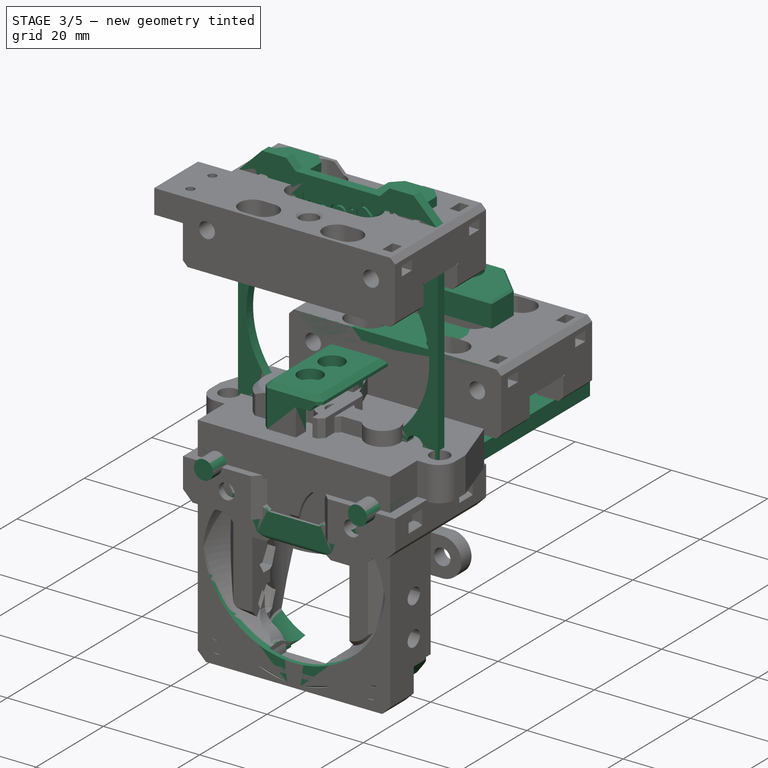
[diagram: stage 3 of 5 — iso view after this stage's code; geometry added in this stage tinted green]
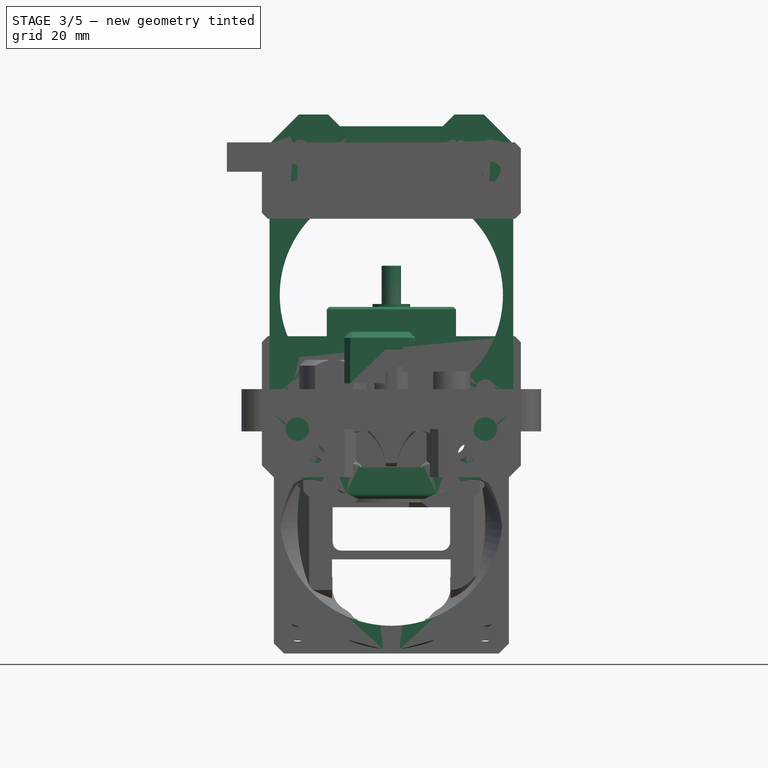
[diagram: stage 3 of 5 — front view after this stage's code; geometry added in this stage tinted green]
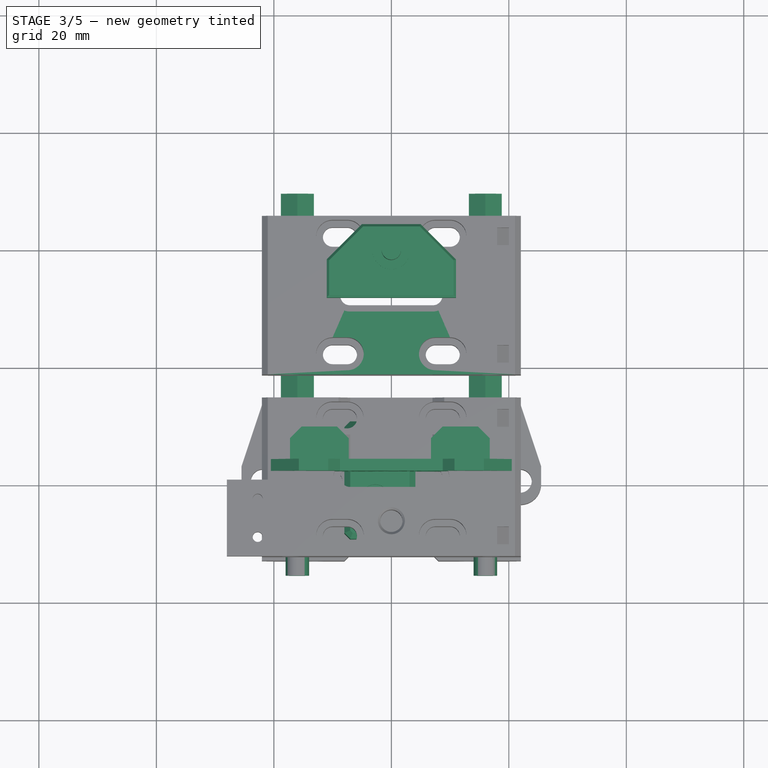
[diagram: stage 3 of 5 — top view after this stage's code; geometry added in this stage tinted green]
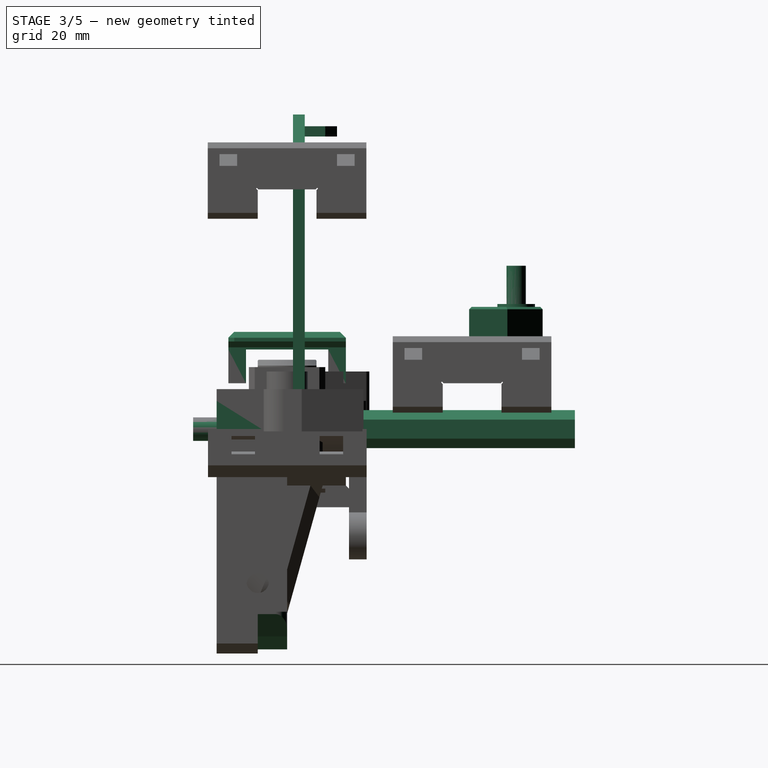
[diagram: stage 3 of 5 — right view after this stage's code; geometry added in this stage tinted green]
FEATURE [Part::Cylinder] Cylinder030
  Angle = 360
  AttacherType = Attacher::AttachEngine3D
  Height = 20
  Placement = pos=(0,39,5) rot=(0,0,1;0rad)
  Radius = 1.65
FEATURE [Part::Cylinder] Cylinder031
  Angle = 360
  AttacherType = Attacher::AttachEngine3D
  Height = 10
  Placement = pos=(0,39,5) rot=(0,0,1;0rad)
  Radius = 1.9
FEATURE [Part::Cut] Cut008004003004014002002005003004003002003001003001002001002002003036
  Base = -> Part__Feature
  Tool = -> Cylinder031
FEATURE [Part::Box] Box024  label="Cube021"
  AttacherType = Attacher::AttachEngine3D
  Height = 5
  Length = 22
  Placement = pos=(-11,31,13) rot=(0,0,1;0rad)
  Width = 12.5
FEATURE [Part::Cylinder] Cylinder034
  Angle = 360
  AttacherType = Attacher::AttachEngine3D
  Height = 3
  Placement = pos=(0,39,15.5) rot=(0,0,1;0rad)
  Radius = 3.2
FEATURE [Part::Chamfer] Chamfer005021077002006007021
  Base = -> Box024
  Edges = 2 edges r=6: [Edge3,Edge7]
FEATURE [Part::Chamfer] Chamfer005021077002006007022
  Base = -> Chamfer005021077002006007021
  Edges = 6 edges r=0.4: [Edge1,Edge5,Edge6,Edge7,Edge8,Edge9]
FEATURE [Part::Box] Box025  label="Cube022"
  AttacherType = Attacher::AttachEngine3D
  Height = 51.5
  Length = 41.5
  Placement = pos=(-20.75,1,-0.75) rot=(0,0,1;0rad)
  Width = 2
FEATURE [Part::Feature] Part__Feature112001131  label="4010 FAN001"
  Placement = pos=(-2.4e-14,-12,-19) rot=(0,0,1;0rad)
  shape: bbox 40 x 10 x 40 mm, 104 faces (baked)
FEATURE [Part::Cylinder] Cylinder035
  Angle = 360
  AttacherType = Attacher::AttachEngine3D
  Height = 10
  Placement = pos=(0,5.25,20) rot=(1,0,0;1.5708rad)
  Radius = 19
FEATURE [Part::Box] Box026  label="Cube023"
  AttacherType = Attacher::AttachEngine3D
  Height = 3
  Length = 30
  Placement = pos=(-15,1,-2.75) rot=(0,0,1;0rad)
  Width = 2
FEATURE [Part::Feature] Chamfer005021077002006007019003001
  Placement = pos=(18,20,9) rot=(0,0,1;0rad)
  shape: bbox 10 x 3 x 10 mm, 10 faces (baked)
FEATURE [Part::Feature] Chamfer005021077002006007019003002
  Placement = pos=(18,40,9) rot=(0,0,1;0rad)
  shape: bbox 10 x 3 x 10 mm, 10 faces (baked)
FEATURE [Part::MultiFuse] Fusion036012039011002025018010027013001002002001002001029002
  Shapes = -> [Chamfer005021077002006007019003001,Chamfer005021077002006007019003002]
FEATURE [Part::Chamfer] Chamfer005021077002006007019003003
  Base = -> Cut008004003004014002002005003004003002003001003001002001002002003036
  Edges = 1 edges r=0.4: [Edge21]
FEATURE [Part::Cut] Cut008004003004014002002005003004003002003001003001002001002002003038  label="top-plate-compact-r1"
  Base = -> Chamfer005021077002006007019003003
  Tool = -> Fusion036012039011002025018010027013001002002001002001029002
FEATURE [Part::Feature] Fusion036012039011002025018010027013001002002001002001029003
  shape: bbox 10 x 20 x 8.75 mm, 25 faces (baked)
FEATURE [Part::Feature] Fusion036012039011002025018010027013001002002001002001029004001001
  shape: bbox 2.2 x 20 x 2.64 mm, 8 faces (baked)
FEATURE [Part::Chamfer] Chamfer005021077002006007019003004
  Base = -> Fusion036012039011002025018010027013001002002001002001029004001001
  Edges = 4 edges r=1: [Edge14,Edge15,Edge17,Edge18]
  Placement = pos=(24.1,-31.5,-1) rot=(0,0,1;0rad)
FEATURE [Part::MultiFuse] Fusion036012039011002025018010027013001002002001002001029004001002  label="x-endstop-cover"
  Shapes = -> [Chamfer005021077002006007019003004,Fusion036012039011002025018010027013001002002001002001029003]
FEATURE [Part::Box] Box027  label="Cube024"
  AttacherType = Attacher::AttachEngine3D
  Height = 1.75
  Length = 10
  Placement = pos=(-17.25,1,47) rot=(0,0,1;0rad)
  Width = 7.5
FEATURE [Part::Cylinder] Cylinder041
  Angle = 360
  AttacherType = Attacher::AttachEngine3D
  Height = 10
  Placement = pos=(-16,5.25,4) rot=(1,0,0;1.5708rad)
  Radius = 1.65
FEATURE [Part::Cylinder] Cylinder042
  Angle = 360
  AttacherType = Attacher::AttachEngine3D
  Height = 10
  Placement = pos=(-16,5.25,36) rot=(1,0,0;1.5708rad)
  Radius = 1.65
FEATURE [Part::Cylinder] Cylinder043
  Angle = 360
  AttacherType = Attacher::AttachEngine3D
  Height = 10
  Placement = pos=(16,5.25,36) rot=(1,0,0;1.5708rad)
  Radius = 1.65
FEATURE [Part::Cylinder] Cylinder044
  Angle = 360
  AttacherType = Attacher::AttachEngine3D
  Height = 10
  Placement = pos=(16,5.25,4) rot=(1,0,0;1.5708rad)
  Radius = 1.65
FEATURE [Part::MultiFuse] Fusion036012039011002025018010027013001002002001002001029004001005
  Placement = pos=(0,4.5,0) rot=(0,0,1;0rad)
  Shapes = -> [Cylinder041,Cylinder042,Cylinder043,Cylinder044]
FEATURE [Part::Box] Box028  label="Cube025"
  AttacherType = Attacher::AttachEngine3D
  Height = 6
  Length = 21.5
  Placement = pos=(-10.75,0,48.75) rot=(0,0,1;0rad)
  Width = 7
FEATURE [Part::Chamfer] Chamfer005021077002006007019003008
  Base = -> Box028
  Edges = 2 edges r=2: [Edge4,Edge8]
FEATURE [Part::Feature] snakeoil_logo_12_001001_solid  label="snakeoil_logo_12_001001 (Solid)"
  Placement = pos=(0,31,24.5) rot=(1,0,0;1.5708rad)
  shape: bbox 35 x 4 x 6 mm, 739 faces (baked)
FEATURE [Part::Chamfer] Chamfer005021077002006007019003010
  Base = -> Box026
  Edges = 2 edges r=2: [Edge4,Edge8]
FEATURE [Part::Chamfer] Chamfer005021077002006007019003011
  Base = -> Box025
  Edges = 2 edges r=3: [Edge4,Edge8]
FEATURE [Part::Chamfer] Chamfer005021077002006007019003012
  Base = -> Chamfer005021077002006007019003011
  Edges = 2 edges r=5: [Edge4,Edge13]
FEATURE [Part::Cut] Cut008004003004014002002005003004003002003001003001002001002002003039
  Base = -> Chamfer005021077002006007019003012
  Tool = -> Chamfer005021077002006007019003008
FEATURE [Part::MultiFuse] Fusion036012039011002025018010027013001002002001002001029004001008
  Shapes = -> [Cut008004003004014002002005003004003002003001003001002001002002003039,Chamfer005021077002006007019003010]
FEATURE [Part::Cut] Cut008004003004014002002005003004003002003001003001002001002002003040
  Base = -> Fusion036012039011002025018010027013001002002001002001029004001008
  Tool = -> Cylinder035
FEATURE [Part::Box] Box029  label="Cube026"
  AttacherType = Attacher::AttachEngine3D
  Height = 1.75
  Length = 10
  Placement = pos=(6.75,1,47) rot=(0,0,1;0rad)
  Width = 7.5
FEATURE [Part::MultiFuse] Fusion036012039011002025018010027013001002002001002001029004001009
  Shapes = -> [Box027,Box029]
FEATURE [Part::Chamfer] Chamfer005021077002006007019003013
  Base = -> Fusion036012039011002025018010027013001002002001002001029004001009
  Edges = 4 edges r=2: [Edge3,Edge7,Edge15,Edge19]
FEATURE [Part::Cut] Cut008004003004014002002005003004003002003001003001002001002002003041
  Base = -> Cut008004003004014002002005003004003002003001003001002001002002003040
  Tool = -> Fusion036012039011002025018010027013001002002001002001029004001005
FEATURE [Part::Cut] Cut008004003004014002002005003004003002003001003001002001002002003042
  Base = -> Cut008004003004014002002005003004003002003001003001002001002002003041
  Tool = -> snakeoil_logo_12_001001_solid
FEATURE [Part::MultiFuse] Fusion036012039011002025018010027013001002002001002001029004001010
  Shapes = -> [Chamfer005021077002006007019003013,Cut008004003004014002002005003004003002003001003001002001002002003042]
FEATURE [Part::Cylinder] Cylinder051
  Angle = 360
  AttacherType = Attacher::AttachEngine3D
  Height = 10
  Placement = pos=(21.9,0,0) rot=(0,0,1;0rad)
  Radius = 2
FEATURE [Part::Cylinder] Cylinder052
  Angle = 360
  AttacherType = Attacher::AttachEngine3D
  Height = 10
  Placement = pos=(-21.9,0,0) rot=(0,0,1;0rad)
  Radius = 2
FEATURE [Part::Cylinder] Cylinder053
  Angle = 360
  AttacherType = Attacher::AttachEngine3D
  Height = 10
  Radius = 2.15
FEATURE [Part::MultiFuse] Fusion036012039011002025018010027013001002002001002001029004001010001009
  Placement = pos=(0,0,-3.3) rot=(0,0,1;0rad)
  Shapes = -> [Cylinder053,Cylinder052,Cylinder051]
FEATURE [Part::Box] Box033  label="Cube029"
  AttacherType = Attacher::AttachEngine3D
  Height = 3
  Length = 30
  Placement = pos=(-15,10,-1) rot=(0,0,1;0rad)
  Width = 22
FEATURE [Part::Chamfer] Chamfer005021077002006007019003022
  Base = -> Box033
  Edges = 2 edges r=2.95: [Edge2,Edge6]
  Placement = pos=(0,0,2) rot=(0,0,1;0rad)
FEATURE [Part::Box] Box034  label="Cube030"
  AttacherType = Attacher::AttachEngine3D
  Height = 5
  Length = 51
  Placement = pos=(-25.5,-12,-1) rot=(0,0,1;0rad)
  Width = 25
FEATURE [Part::Box] Box035  label="Cube031"
  AttacherType = Attacher::AttachEngine3D
  Height = 5
  Length = 5.5
  Placement = pos=(-25.5,-12,-1) rot=(0,0,1;0rad)
  Width = 8
FEATURE [Part::Box] Box036  label="Cube032"
  AttacherType = Attacher::AttachEngine3D
  Height = 5
  Length = 5.5
  Placement = pos=(20,-12,-1) rot=(0,0,1;0rad)
  Width = 8
FEATURE [Part::MultiFuse] Fusion036012039011002025018010027013001002002001002001029004001010001010
  Shapes = -> [Box036,Box035]
FEATURE [Part::Cut] Cut008004003004014002002005003004003002003001003001002001002002003048
  Base = -> Box034
  Tool = -> Fusion036012039011002025018010027013001002002001002001029004001010001010
FEATURE [Part::Fillet] Fillet001001003
  Base = -> Cut008004003004014002002005003004003002003001003001002001002002003048
  Edges = 2 edges r=3.5: [Edge1,Edge22]
FEATURE [Part::Chamfer] Chamfer005021077002006007019003023
  Base = -> Fillet001001003
  Edges = 1 edges: [Edge4 r1=10.5 r2=3.5]
FEATURE [Part::Chamfer] Chamfer005021077002006007019003021
  Base = -> Chamfer005021077002006007019003023
  Edges = 1 edges: [Edge27 r1=3.5 r2=10.5]
FEATURE [Part::Box] Box037  label="Cube033"
  AttacherType = Attacher::AttachEngine3D
  Height = 3
  Length = 30
  Placement = pos=(-15,10,-2) rot=(0,0,1;0rad)
  Width = 22
FEATURE [Part::MultiFuse] Fusion036012039011002025018010027013001002002001002001029004001010001011
  Shapes = -> [Chamfer005021077002006007019003022,Box037]
FEATURE [Part::Box] Box038  label="Cube034"
  AttacherType = Attacher::AttachEngine3D
  Height = 7
  Length = 26
  Placement = pos=(-13,10,-2) rot=(0,0,1;0rad)
  Width = 22
FEATURE [Part::MultiFuse] Fusion036012039011002025018010027013001002002001002001029004001010001012
  Shapes = -> [Box038,Fusion036012039011002025018010027013001002002001002001029004001010001011]
FEATURE [Part::Cut] Cut008004003004014002002005003004003002003001003001002001002002003049
  Base = -> Chamfer005021077002006007019003021
  Tool = -> Fusion036012039011002025018010027013001002002001002001029004001010001012
FEATURE [Part::Cut] Cut008004003004014002002005003004003002003001003001002001002002003050  label="serpa-base-plate-compact-r2"
  Base = -> Cut008004003004014002002005003004003002003001003001002001002002003049
  Placement = pos=(0,0,-2) rot=(0,0,1;0rad)
  Tool = -> Fusion036012039011002025018010027013001002002001002001029004001010001009
FEATURE [Part::Feature] Pad001004  label="hex-slot003"
  Placement = pos=(16,-22,-2.8) rot=(-1,0,0;1.5708rad)
  shape: bbox 5.603 x 50 x 6.47 mm, 8 faces (baked)
FEATURE [Part::Feature] Pad001005  label="hex-slot004"
  Placement = pos=(-16,-22,-2.8) rot=(-1,0,0;1.5708rad)
  shape: bbox 5.603 x 50 x 6.47 mm, 8 faces (baked)
FEATURE [Part::MultiFuse] Fusion036012039011002025018010027013001002002001002001029004001010001015008  label="hex-slot-dual"
  Placement = pos=(0,21,0) rot=(0,0,1;0rad)
  Shapes = -> [Pad001004,Pad001005]
FEATURE [Part::Cylinder] Cylinder060
  Angle = 360
  AttacherType = Attacher::AttachEngine3D
  Height = 34
  Placement = pos=(-16,-16,-2.8) rot=(-1,0,0;1.5708rad)
  Radius = 2
FEATURE [Part::Cylinder] Cylinder061
  Angle = 360
  AttacherType = Attacher::AttachEngine3D
  Height = 34
  Placement = pos=(16,-16,-2.8) rot=(-1,0,0;1.5708rad)
  Radius = 2
FEATURE [Part::Feature] Cut008004003004014002002005003004003002003001003001002001002002003050017
  Placement = pos=(0,0,6.5) rot=(0,0,1;0rad)
  shape: bbox 17 x 11.5 x 5 mm, 11 faces (baked)
FEATURE [Part::Feature] Pad001006
  shape: bbox 40.01 x 26.05 x 46.11 mm, 144 faces (baked)
FEATURE [Part::Cylinder] Cylinder067
  Angle = 360
  AttacherType = Attacher::AttachEngine3D
  Height = 12
  Placement = pos=(-16,-2,-1.3) rot=(1,0,0;1.5708rad)
  Radius = 1.9
FEATURE [Part::Cylinder] Cylinder068
  Angle = 360
  AttacherType = Attacher::AttachEngine3D
  Height = 12
  Placement = pos=(16,-2,-1.3) rot=(1,0,0;1.5708rad)
  Radius = 1.9
FEATURE [Part::MultiFuse] Fusion036012039011002025018010027013001002002001002001029004001010001015008003007
  Placement = pos=(0,1,0) rot=(0,0,1;0rad)
  Shapes = -> [Cylinder068,Cylinder067]
FEATURE [Part::Cut] Cut008004003004014002002005003004003002003001003001002001002002003050016
  Base = -> Cut008004003004014002002005003004003002003001003001002001002002003050015
  Placement = pos=(0,0,4.5) rot=(0,0,1;0rad)
  Tool = -> Fusion036012039011002025018010027013001002002001002001029004001010001015008003004
FEATURE [Part::MultiFuse] Fusion036012039011002025018010027013001002002001002001029004001010001015008003005
  Placement = pos=(0,0,-2) rot=(0,0,1;0rad)
  Shapes = -> [Cut008004003004014002002005003004003002003001003001002001002002003050017,Cut008004003004014002002005003004003002003001003001002001002002003050016]
FEATURE [Part::Feature] Cut008004003004014002002005003004003002003001003001002001002002003050021  label="serpa-base-plate-compact-r005"
  Placement = pos=(0,0,-2) rot=(0,0,1;0rad)
  shape: bbox 51.01 x 25.01 x 5.008 mm, 34 faces (baked)
FEATURE [Part::Box] Box047  label="Cube042"
  AttacherType = Attacher::AttachEngine3D
  Height = 10
  Length = 57
  Placement = pos=(-28,-15,2) rot=(0,0,1;0rad)
  Width = 30
FEATURE [Part::Cut] Cut008004003004014002002005003004003002003001003001002001002002003050022
  Base = -> Pad001006
  Tool = -> Box047
FEATURE [Part::Cut] Cut008004003004014002002005003004003002003001003001002001002002003050023
  Base = -> Cut008004003004014002002005003004003002003001003001002001002002003050021
  Tool = -> Fusion036012039011002025018010027013001002002001002001029004001010001015008003005
FEATURE [Part::Chamfer] Chamfer005021077002006007019003032008
  Base = -> Cut008004003004014002002005003004003002003001003001002001002002003050023
  Edges = 2 edges r=2.3: [Edge7,Edge11]
FEATURE [Part::Cut] Cut008004003004014002002005003004003002003001003001002001002002003050024
  Base = -> Chamfer005021077002006007019003032008
  Tool = -> Fusion036012039011002025018010027013001002002001002001029004001010001015008003007
FEATURE [Part::Cut] Cut008004003004014002002005003004003002003001003001002001002002003050025
  Base = -> Cut008004003004014002002005003004003002003001003001002001002002003050024
  Tool = -> Box048
FEATURE [Part::MultiFuse] Fusion036012039011002025018010027013001002002001002001029004001010001015008003008  label="cooperhead-face-r2-draf"
  Shapes = -> [Cut008004003004014002002005003004003002003001003001002001002002003050025,Cut008004003004014002002005003004003002003001003001002001002002003050022]
FEATURE [Part::Refine] Fusion036012039011002025018010027013001002002001002001029004001010001015008003008001  label="cooperhead-face-r2-draf001"
  Source = -> Fusion036012039011002025018010027013001002002001002001029004001010001015008003008
FEATURE [Part::Chamfer] Chamfer005021077002006007019003032009
  Base = -> Fusion036012039011002025018010027013001002002001002001029004001010001015008003008001
  Edges = 17 edges r=0.4: [Edge50,Edge52,Edge54,Edge58,Edge64,Edge66,Edge140,Edge145,Edge149,Edge151,Edge156,Edge159,Edge230,Edge245,Edge246,Edge358,Edge359]
FEATURE [Part::Chamfer] Chamfer005021077002006007019003032010
  Base = -> Chamfer005021077002006007019003032009
  Edges = 2 edges r=0.2: [Edge82,Edge83]
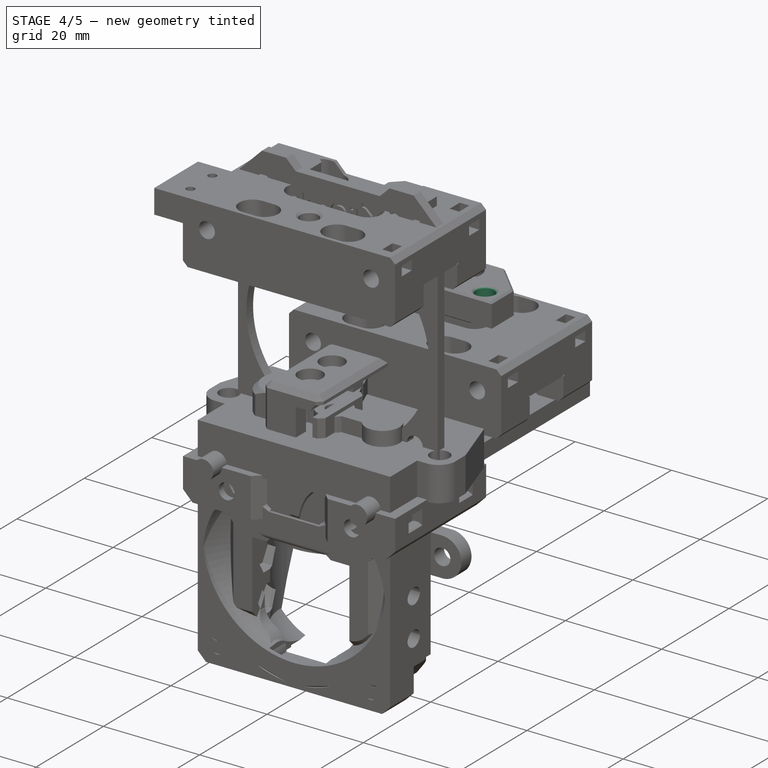
[diagram: stage 4 of 5 — iso view after this stage's code; geometry added in this stage tinted green]
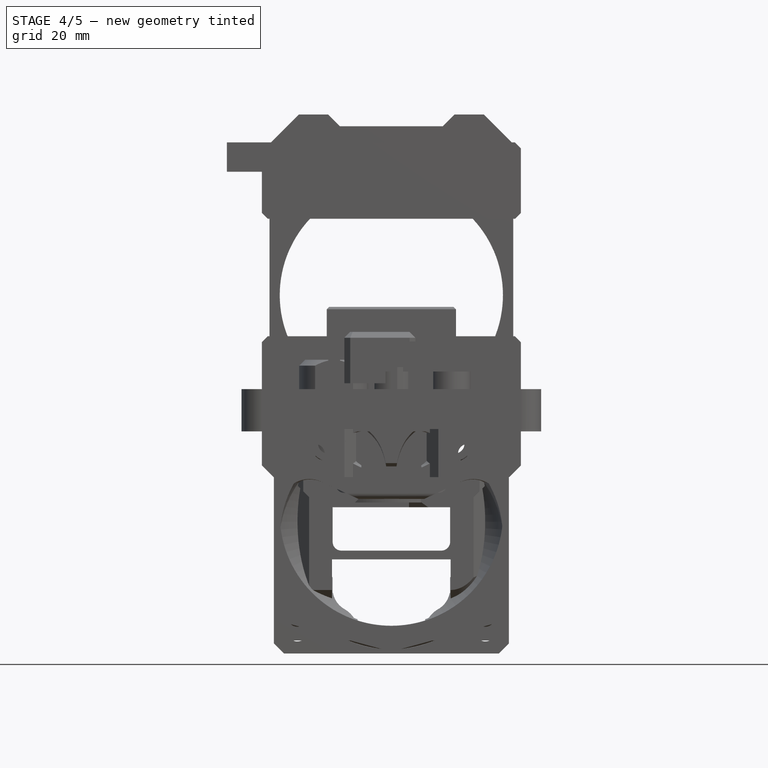
[diagram: stage 4 of 5 — front view after this stage's code; geometry added in this stage tinted green]
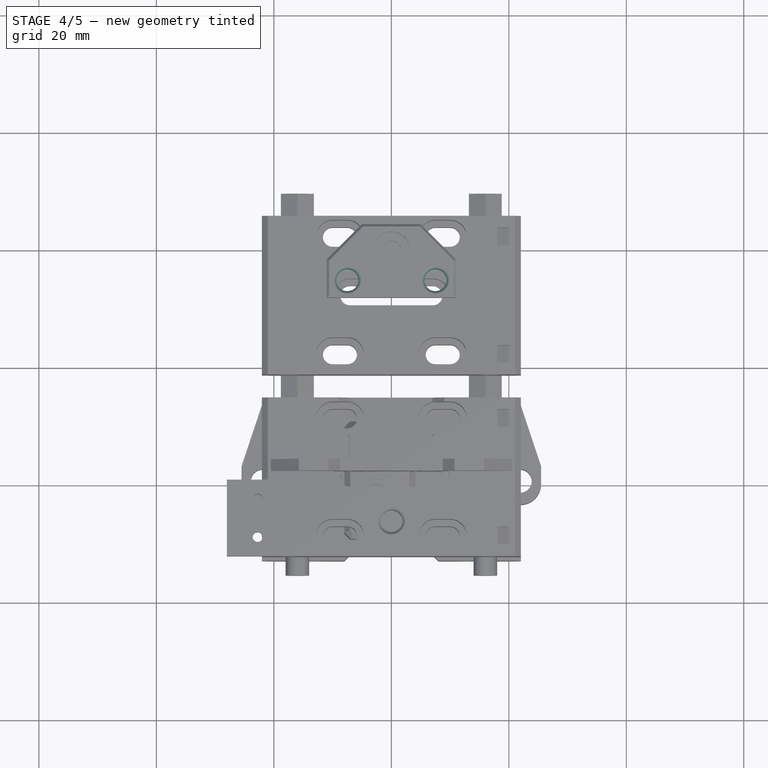
[diagram: stage 4 of 5 — top view after this stage's code; geometry added in this stage tinted green]
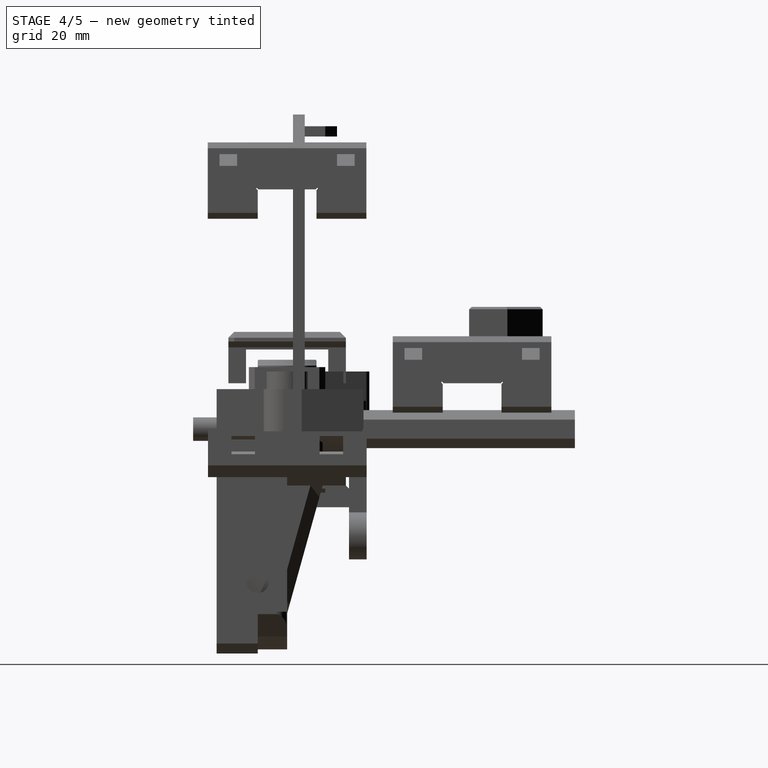
[diagram: stage 4 of 5 — right view after this stage's code; geometry added in this stage tinted green]
FEATURE [Part::Feature] Cut005005001001  label="motor-supporter-tall"
  Placement = pos=(0,2,0) rot=(0,0,1;0rad)
  shape: bbox 44.1 x 26.9 x 18 mm, 48 faces (baked)
FEATURE [Part::Feature] Part__Feature  label="top_mgn12"
  Placement = pos=(34.05,31.5,-10.05) rot=(0,-1,0;1.5708rad)
  shape: bbox 44.1 x 27 x 13 mm, 69 faces (baked)
FEATURE [Part::Feature] Fusion036012039011002025018010027013001001
  shape: bbox 40.01 x 24.77 x 40.61 mm, 109 faces (baked)
FEATURE [Part::Feature] Fusion036012039011002025018010027013001002001  label="probe-slot"
  Placement = pos=(0,0,0.5) rot=(0,0,1;0rad)
  shape: bbox 50 x 3.8 x 11.8 mm, 12 faces, 4 solids (baked)
FEATURE [Part::Box] Box  label="right-select"
  AttacherType = Attacher::AttachEngine3D
  Height = 45
  Length = 30
  Placement = pos=(0,-17,-41) rot=(0,0,1;0rad)
  Width = 36
FEATURE [Part::MultiCommon] Common001
  Shapes = -> [Fusion036012039011002025018010027013001001,Box]
FEATURE [Part::Feature] Part__Mirroring002001  label="Common001001 (Mirror #3)001"
  shape: bbox 20.01 x 24.77 x 40.61 mm, 60 faces (baked)
FEATURE [Part::Feature] Part__Mirroring001001  label="Common002001 (Mirror #2)001"
  shape: bbox 20.01 x 26.05 x 46.11 mm, 71 faces (baked)
FEATURE [Part::Feature] Part__Mirroring002002  label="Common003001 (Mirror #1)001"
  shape: bbox 23.77 x 23.2 x 42.81 mm, 58 faces (baked)
FEATURE [Part::MultiFuse] Fusion036012039011002025018010027013001002002001002001002
  Shapes = -> [Part__Mirroring002001,Common001]
FEATURE [Part::Box] Box015  label="Cube"
  AttacherType = Attacher::AttachEngine3D
  Height = 3
  Length = 30
  Placement = pos=(-15,10,-1) rot=(0,0,1;0rad)
  Width = 22
FEATURE [Part::Box] Box016  label="Cube013"
  AttacherType = Attacher::AttachEngine3D
  Height = 5
  Length = 51
  Placement = pos=(-25.5,-12,-1) rot=(0,0,1;0rad)
  Width = 25
FEATURE [Part::Box] Box017  label="Cube014"
  AttacherType = Attacher::AttachEngine3D
  Height = 5
  Length = 5.5
  Placement = pos=(-25.5,-12,-1) rot=(0,0,1;0rad)
  Width = 8
FEATURE [Part::Box] Box018  label="Cube015"
  AttacherType = Attacher::AttachEngine3D
  Height = 5
  Length = 5.5
  Placement = pos=(20,-12,-1) rot=(0,0,1;0rad)
  Width = 8
FEATURE [Part::MultiFuse] Fusion036012039011002025018010027013001002002001002001008
  Shapes = -> [Box018,Box017]
FEATURE [Part::Cut] Cut005005001005
  Base = -> Box016
  Tool = -> Fusion036012039011002025018010027013001002002001002001008
FEATURE [Part::Fillet] Fillet001001002
  Base = -> Cut005005001005
  Edges = 2 edges r=3.5: [Edge1,Edge22]
FEATURE [Part::Chamfer] Chamfer005021077002006004
  Base = -> Fillet001001002
  Edges = 1 edges: [Edge4 r1=10.5 r2=3.5]
FEATURE [Part::Chamfer] Chamfer005021077002006005
  Base = -> Chamfer005021077002006004
  Edges = 1 edges: [Edge27 r1=3.5 r2=10.5]
FEATURE [Part::Chamfer] Chamfer005021077002006006
  Base = -> Box015
  Edges = 2 edges r=2.95: [Edge2,Edge6]
FEATURE [Part::Cut] Cut005005001006
  Base = -> Chamfer005021077002006005
  Tool = -> Chamfer005021077002006006
FEATURE [Part::Cylinder] Cylinder013
  Angle = 360
  AttacherType = Attacher::AttachEngine3D
  Height = 10
  Placement = pos=(21.9,0,0) rot=(0,0,1;0rad)
  Radius = 2
FEATURE [Part::Cylinder] Cylinder014
  Angle = 360
  AttacherType = Attacher::AttachEngine3D
  Height = 10
  Placement = pos=(-21.9,0,0) rot=(0,0,1;0rad)
  Radius = 2
FEATURE [Part::Cylinder] Cylinder015
  Angle = 360
  AttacherType = Attacher::AttachEngine3D
  Height = 10
  Radius = 2.15
FEATURE [Part::Cylinder] Cylinder016
  Angle = 360
  AttacherType = Attacher::AttachEngine3D
  Height = 10
  Placement = pos=(-6,0,0) rot=(0,0,1;0rad)
  Radius = 2.5
FEATURE [Part::Cylinder] Cylinder017
  Angle = 360
  AttacherType = Attacher::AttachEngine3D
  Height = 10
  Placement = pos=(6,0,0) rot=(0,0,1;0rad)
  Radius = 2.5
FEATURE [Part::Cylinder] Cylinder018
  Angle = 360
  AttacherType = Attacher::AttachEngine3D
  Height = 10
  Placement = pos=(0,0,-8.2) rot=(0,0,1;0rad)
  Radius = 2.15
FEATURE [Part::Cylinder] Cylinder019
  Angle = 360
  AttacherType = Attacher::AttachEngine3D
  Height = 10
  Placement = pos=(0,0,-8.2) rot=(0,0,1;0rad)
  Radius = 3
FEATURE [Part::MultiFuse] Fusion036012039011002025018010027013001002002001002001013
  Placement = pos=(0,0,-3.9) rot=(0,0,1;0rad)
  Shapes = -> [Cylinder016,Cylinder017]
FEATURE [Part::Cut] Cut005005001008
  Base = -> Cylinder019
  Tool = -> Cylinder018
FEATURE [Part::MultiFuse] Fusion036012039011002025018010027013001002002001002001015
  Placement = pos=(0,0,-3.3) rot=(0,0,1;0rad)
  Shapes = -> [Cylinder015,Cylinder014,Cylinder013]
FEATURE [Part::Cut] Cut005005001009
  Base = -> Cut005005001006
  Tool = -> Fusion036012039011002025018010027013001002002001002001015
FEATURE [Part::Chamfer] Chamfer005021077002006007  label="sherpa-mount-plate-base"
  Base = -> Cut005005001009
  Edges = 3 edges r=0.4: [Edge14,Edge47,Edge51]
FEATURE [Part::Feature] Chamfer005021077002006007001  label="sherpa-mount-plate-base001"
  shape: bbox 51 x 25 x 5.003 mm, 26 faces (baked)
FEATURE [Part::Chamfer] Chamfer005021077002006007002
  Base = -> Chamfer005021077002006007001
  Edges = 1 edges: [Edge42 r1=10.37 r2=4.82]
FEATURE [Part::Chamfer] Chamfer005021077002006007003
  Base = -> Chamfer005021077002006007002
  Edges = 1 edges: [Edge25 r1=10.37 r2=4.82]
FEATURE [Part::Cut] Cut005005001010  label="mosquito-base"
  Base = -> Fusion036012039011002025018010027013001002002001002001002
  Tool = -> Fusion036012039011002025018010027013001002001
FEATURE [Part::MultiFuse] Fusion036012039011002025018010027013001002002001002001016
  Shapes = -> [Cut005005001010,Cut005005001008]
FEATURE [Part::MultiFuse] Fusion036012039011002025018010027013001002002001002001017
  Shapes = -> [Chamfer005021077002006007003,Fusion036012039011002025018010027013001002002001002001016]
FEATURE [Part::Cut] Cut005005001011
  Base = -> Fusion036012039011002025018010027013001002002001002001017
  Tool = -> Fusion036012039011002025018010027013001002002001002001013
FEATURE [Part::Chamfer] Chamfer005021077002006007004
  Base = -> Cut005005001011
  Edges = 2 edges r=0.2: [Edge15,Edge19]
FEATURE [Part::Cylinder] Cylinder021
  Angle = 360
  AttacherType = Attacher::AttachEngine3D
  Height = 10
  Placement = pos=(5.65685,5.65685,0) rot=(0,0,1;0.785398rad)
  Radius = 2.4
FEATURE [Part::Cylinder] Cylinder022
  Angle = 360
  AttacherType = Attacher::AttachEngine3D
  Height = 10
  Placement = pos=(-5.65685,5.65685,0) rot=(0,0,1;0.785398rad)
  Radius = 2.4
FEATURE [Part::Cylinder] Cylinder023
  Angle = 360
  AttacherType = Attacher::AttachEngine3D
  Height = 10
  Placement = pos=(-5.65685,-5.65685,0) rot=(0,0,1;0.785398rad)
  Radius = 2.4
FEATURE [Part::Cylinder] Cylinder024
  Angle = 360
  AttacherType = Attacher::AttachEngine3D
  Height = 10
  Placement = pos=(5.65685,-5.65685,0) rot=(0,0,1;0.785398rad)
  Radius = 2.4
FEATURE [Part::MultiFuse] Fusion036012039011002025018010027013001002002001002001019
  Placement = pos=(0,0,-5) rot=(0,0,1;0rad)
  Shapes = -> [Cylinder024,Cylinder021,Cylinder022,Cylinder023]
FEATURE [Part::Cut] Cut005005001013
  Base = -> Chamfer005021077002006007006
  Tool = -> Fusion036012039011002025018010027013001002002001002001019
FEATURE [Part::Chamfer] Chamfer005021077002006007007
  Base = -> Cut005005001013
  Edges = 4 edges r=0.4: [Edge13,Edge14,Edge16,Edge19]
FEATURE [Part::Box] Box019  label="Cube016"
  AttacherType = Attacher::AttachEngine3D
  Height = 10
  Length = 10
  Placement = pos=(19.52,-14,-1.5) rot=(0,0,1;0rad)
  Width = 10
FEATURE [Part::Box] Box020  label="Cube017"
  AttacherType = Attacher::AttachEngine3D
  Height = 10
  Length = 10
  Placement = pos=(-29.52,-14,-1.5) rot=(0,0,1;0rad)
  Width = 10
FEATURE [Part::MultiFuse] Fusion036012039011002025018010027013001002002001002001020
  Shapes = -> [Box020,Box019]
FEATURE [Part::Cut] Cut005005001014
  Base = -> Chamfer005021077002006007007
  Tool = -> Fusion036012039011002025018010027013001002002001002001020
FEATURE [Part::Chamfer] Chamfer005021077002006007008
  Base = -> Cut005005001014
  Edges = 1 edges: [Edge34 r1=9.9 r2=5.5]
FEATURE [Part::Chamfer] Chamfer005021077002006007012
  Base = -> Chamfer005021077002006007004
  Edges = 2 edges r=0.4: [Edge16,Edge18]
FEATURE [Part::Chamfer] Chamfer005021077002006007013  label="mosquitto-face-compacr-r1"
  Base = -> Chamfer005021077002006007012
  Edges = 14 edges r=0.2: [Edge3,Edge4,Edge5,Edge6,Edge7,Edge8,Edge9,Edge10,Edge11,Edge12,Edge13,Edge14,Edge15,Edge16]
FEATURE [Part::Feature] Cut005005001004001  label="cooper-head-base001"
  shape: bbox 40.01 x 26.05 x 46.11 mm, 140 faces (baked)
FEATURE [Part::Box] Box021  label="Cube018"
  AttacherType = Attacher::AttachEngine3D
  Height = 5
  Length = 18
  Placement = pos=(-9,-3,-6) rot=(0,0,1;0rad)
  Width = 12
FEATURE [Part::Cut] Cut005005001004002
  Base = -> Box021
  Tool = -> Cut005005001004001
FEATURE [Part::Cylinder] Cylinder026
  Angle = 360
  AttacherType = Attacher::AttachEngine3D
  Height = 10
  Placement = pos=(-9,-3.5,0) rot=(0,0,1;0rad)
  Radius = 2
FEATURE [Part::Cylinder] Cylinder027
  Angle = 360
  AttacherType = Attacher::AttachEngine3D
  Height = 10
  Placement = pos=(9,-3.5,0) rot=(0,0,1;0rad)
  Radius = 2
FEATURE [Part::MultiFuse] Fusion036012039011002025018010027013001002002001002001022
  Placement = pos=(0,0,-8) rot=(0,0,1;0rad)
  Shapes = -> [Cylinder027,Cylinder026]
FEATURE [Part::Cut] Cut005005001004003
  Base = -> Cut005005001004002
  Placement = pos=(0,0,4.5) rot=(0,0,1;0rad)
  Tool = -> Fusion036012039011002025018010027013001002002001002001022
FEATURE [Part::Feature] Cut005005001004003001
  Placement = pos=(0,0,6.5) rot=(0,0,1;0rad)
  shape: bbox 17 x 11.5 x 5 mm, 11 faces (baked)
FEATURE [Part::MultiFuse] Fusion036012039011002025018010027013001002002001002001023
  Shapes = -> [Cut005005001004003001,Cut005005001004003]
FEATURE [Part::Cut] Cut005005001004003002
  Base = -> Chamfer005021077002006007
  Tool = -> Fusion036012039011002025018010027013001002002001002001023
FEATURE [Part::Chamfer] Chamfer005021077002006007014
  Base = -> Cut005005001004003002
  Edges = 3 edges r=1.3: [Edge7,Edge9,Edge11]
FEATURE [Part::Chamfer] Chamfer005021077002006007015
  Base = -> Chamfer005021077002006007014
  Edges = 22 edges r=0.4: [Edge1,Edge2,Edge4,Edge6,Edge8,Edge9,Edge10,Edge11,Edge12,Edge13,Edge14,Edge15,Edge16,Edge17,Edge18,Edge19,Edge20,Edge21,Edge22,Edge23,Edge24,Edge25]
FEATURE [Part::Feature] Pad001001
  shape: bbox 40.01 x 26.05 x 46.11 mm, 144 faces (baked)
FEATURE [Part::Cylinder] Cylinder028
  Angle = 360
  AttacherType = Attacher::AttachEngine3D
  Height = 12
  Placement = pos=(-16,-2,-1.3) rot=(1,0,0;1.5708rad)
  Radius = 1.9
FEATURE [Part::Cylinder] Cylinder029
  Angle = 360
  AttacherType = Attacher::AttachEngine3D
  Height = 12
  Placement = pos=(16,-2,-1.3) rot=(1,0,0;1.5708rad)
  Radius = 1.9
FEATURE [Part::MultiFuse] Fusion036012039011002025018010027013001002002001002001025
  Shapes = -> [Chamfer005021077002006007015,Pad001001]
FEATURE [Part::MultiFuse] Fusion036012039011002025018010027013001002002001002001026
  Placement = pos=(0,1,0) rot=(0,0,1;0rad)
  Shapes = -> [Cylinder029,Cylinder028]
FEATURE [Part::Cut] Cut005005001004003003
  Base = -> Fusion036012039011002025018010027013001002002001002001025
  Tool = -> Fusion036012039011002025018010027013001002002001002001026
FEATURE [Part::Chamfer] Chamfer005021077002006007016  label="cooper-head-face-compacr-r1"
  Base = -> Cut005005001004003003
  Edges = 4 edges r=0.4: [Edge105,Edge138,Edge219,Edge360]
FEATURE [Part::Cylinder] Cylinder032
  Angle = 360
  AttacherType = Attacher::AttachEngine3D
  Height = 20
  Placement = pos=(-7.5,34,5) rot=(0,0,1;0rad)
  Radius = 1.9
FEATURE [Part::Cylinder] Cylinder033
  Angle = 360
  AttacherType = Attacher::AttachEngine3D
  Height = 20
  Placement = pos=(7.5,34,5) rot=(0,0,1;0rad)
  Radius = 1.9
FEATURE [Part::Feature] Part__Feature112001142  label="adxl345 v035"
  shape: bbox 0.1911 x 0.3 x 0.1 mm, 6 faces (baked)
FEATURE [Part::Feature] Part__Feature112001143  label="adxl345 v036"
  shape: bbox 0.5 x 0.5 x 0.1 mm, 6 faces (baked)
FEATURE [Part::Feature] Part__Feature112001144  label="adxl345 v037"
  shape: bbox 0.5 x 0.5 x 0.1 mm, 6 faces (baked)
FEATURE [Part::Feature] Part__Feature112001145  label="adxl345 v038"
  shape: bbox 0.5 x 0.5 x 0.1 mm, 6 faces (baked)
FEATURE [Part::Feature] Part__Feature112001146  label="adxl345 v039"
  shape: bbox 20 x 15 x 1.27 mm, 8 faces (baked)
FEATURE [Part::Feature] Part__Feature112001147  label="adxl345 v040"
  shape: bbox 0.1939 x 0.3 x 0.1 mm, 6 faces (baked)
FEATURE [Part::Feature] Part__Feature112001148  label="adxl345 v041"
  shape: bbox 6 x 3 x 0.5 mm, 6 faces (baked)
FEATURE [Part::Feature] Part__Feature112001149  label="adxl345 v042"
  shape: bbox 0.5 x 0.5 x 0.15 mm, 6 faces (baked)
FEATURE [Part::Feature] Part__Feature112001150  label="adxl345 v043"
  shape: bbox 0.5 x 0.5 x 0.1 mm, 6 faces (baked)
FEATURE [Part::Feature] Part__Feature112001151  label="adxl345 v044"
  shape: bbox 0.5 x 0.5 x 0.1 mm, 6 faces (baked)
FEATURE [Part::Feature] Part__Feature112001152  label="adxl345 v045"
  shape: bbox 0.5 x 0.5 x 0.1 mm, 6 faces (baked)
FEATURE [Part::Feature] Part__Feature112001153  label="adxl345 v046"
  shape: bbox 0.5 x 0.5 x 0.1 mm, 6 faces (baked)
FEATURE [Part::Feature] Part__Feature112001154  label="adxl345 v047"
  shape: bbox 0.2125 x 0.3 x 0.1 mm, 6 faces (baked)
FEATURE [Part::Feature] Part__Feature112001155  label="adxl345 v048"
  shape: bbox 4 x 2 x 1 mm, 6 faces (baked)
FEATURE [Part::Feature] Part__Feature112001156  label="adxl345 v049"
  shape: bbox 0.2125 x 0.4 x 0.1 mm, 6 faces (baked)
FEATURE [Part::Feature] Part__Feature112001157  label="adxl345 v050"
  shape: bbox 0.5 x 0.5 x 0.15 mm, 6 faces (baked)
FEATURE [Part::Feature] Part__Feature112001158  label="adxl345 v051"
  shape: bbox 0.5 x 0.5054 x 0.15 mm, 6 faces (baked)
FEATURE [Part::Feature] Part__Feature112001159  label="adxl345 v052"
  shape: bbox 0.5 x 0.5 x 0.15 mm, 6 faces (baked)
FEATURE [Part::Feature] Part__Feature112001160  label="adxl345 v053"
  shape: bbox 0.5 x 0.5054 x 0.15 mm, 6 faces (baked)
FEATURE [Part::Feature] Part__Feature112001161  label="adxl345 v054"
  shape: bbox 0.5 x 0.5054 x 0.15 mm, 6 faces (baked)
FEATURE [Part::Feature] Part__Feature112001162  label="adxl345 v055"
  shape: bbox 0.5 x 0.5 x 0.1 mm, 6 faces (baked)
FEATURE [Part::Feature] Part__Feature112001163  label="adxl345 v056"
  shape: bbox 0.5 x 2 x 0.1 mm, 6 faces (baked)
FEATURE [Part::Feature] Part__Feature112001164  label="adxl345 v057"
  shape: bbox 0.5 x 0.4946 x 0.1 mm, 6 faces (baked)
FEATURE [Part::Feature] Part__Feature112001165  label="adxl345 v058"
  shape: bbox 0.5 x 0.5 x 0.1 mm, 6 faces (baked)
FEATURE [Part::Feature] Part__Feature112001166  label="adxl345 v059"
  shape: bbox 0.5 x 0.4946 x 0.1 mm, 6 faces (baked)
FEATURE [Part::Feature] Part__Feature112001167  label="adxl345 v060"
  shape: bbox 0.5 x 2 x 0.1 mm, 6 faces (baked)
FEATURE [Part::Feature] Part__Feature112001168  label="adxl345 v061"
  shape: bbox 0.5 x 0.4946 x 0.1 mm, 6 faces (baked)
FEATURE [Part::Feature] Part__Feature112001169  label="adxl345 v062"
  shape: bbox 0.5 x 0.5 x 0.1 mm, 6 faces (baked)
FEATURE [Part::Feature] Part__Feature112001170  label="adxl345 v063"
  shape: bbox 0.5005 x 0.4962 x 0.1 mm, 6 faces (baked)
FEATURE [Part::Feature] Part__Feature112001171  label="adxl345 v064"
  shape: bbox 0.1911 x 0.4 x 0.1 mm, 6 faces (baked)
FEATURE [Part::Feature] Part__Feature112001172  label="adxl345 v065"
  shape: bbox 2 x 1 x 0.3 mm, 6 faces (baked)
FEATURE [Part::Feature] Part__Feature112001173  label="adxl345 v066"
  shape: bbox 0.5005 x 0.5054 x 0.15 mm, 6 faces (baked)
FEATURE [App::Part] adxl345_v004  label="adxl345"
  Group = -> [Part__Feature112001148,Part__Feature112001146,Part__Feature112001155,Part__Feature112001154,Part__Feature112001153,Part__Feature112001152,Part__Feature112001164,Part__Feature112001151,Part__Feature112001163,Part__Feature112001150,Part__Feature112001166,Part__Feature112001165,Part__Feature112001156,Part__Feature112001147,Part__Feature112001145,Part__Feature112001162,Part__Feature112001143,+15 more]
  Origin = -> Origin207
  Placement = pos=(9,-9.87,-1) rot=(0,0,1;1.5708rad)
FEATURE [Part::Box] Box023  label="Cube020"
  AttacherType = Attacher::AttachEngine3D
  Height = 2.5
  Length = 10
  Placement = pos=(-5,32,11.5) rot=(0,0,1;0rad)
  Width = 2.25
FEATURE [Part::Chamfer] Chamfer005021077002006007020
  Base = -> Box023
  Edges = 1 edges r=1.5: [Edge9]
FEATURE [Part::MultiFuse] Fusion036012039011002025018010027013001002002001002001027
  Shapes = -> [Cylinder034,Cylinder030]
FEATURE [Part::MultiFuse] Fusion036012039011002025018010027013001002002001002001028
  Shapes = -> [Cylinder033,Fusion036012039011002025018010027013001002002001002001027,Cylinder032]
FEATURE [Part::Cut] Cut008004003004014002002005003004003002003001003001002001002002003037
  Base = -> Chamfer005021077002006007022
  Tool = -> Fusion036012039011002025018010027013001002002001002001028
FEATURE [Part::Chamfer] Chamfer005021077002006007023  label="adxl-mount"
  Base = -> Cut008004003004014002002005003004003002003001003001002001002002003037
  Edges = 2 edges r=0.4: [Edge27,Edge29]
FEATURE [Part::MultiFuse] Fusion036012039011002025018010027013001002002001002001029  label="adxl-mount-compact-r1"
  Shapes = -> [Chamfer005021077002006007023,Chamfer005021077002006007020]
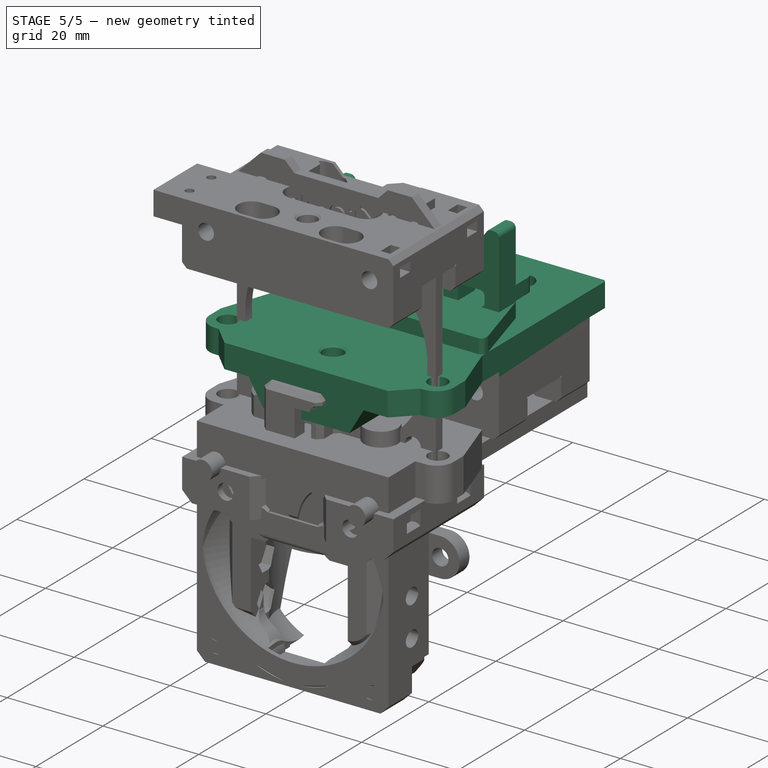
[diagram: stage 5 of 5 — iso view after this stage's code; geometry added in this stage tinted green]
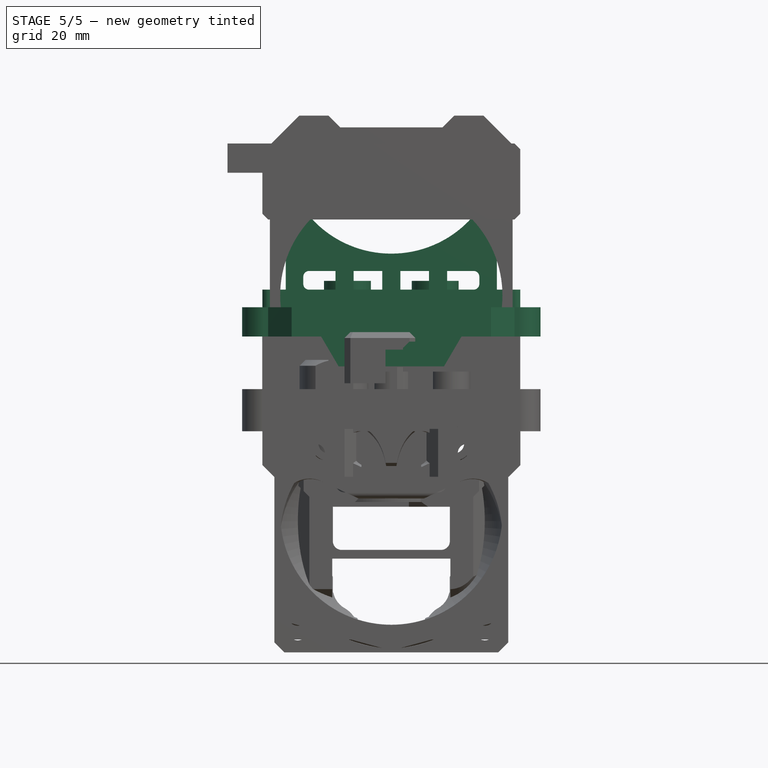
[diagram: stage 5 of 5 — front view after this stage's code; geometry added in this stage tinted green]
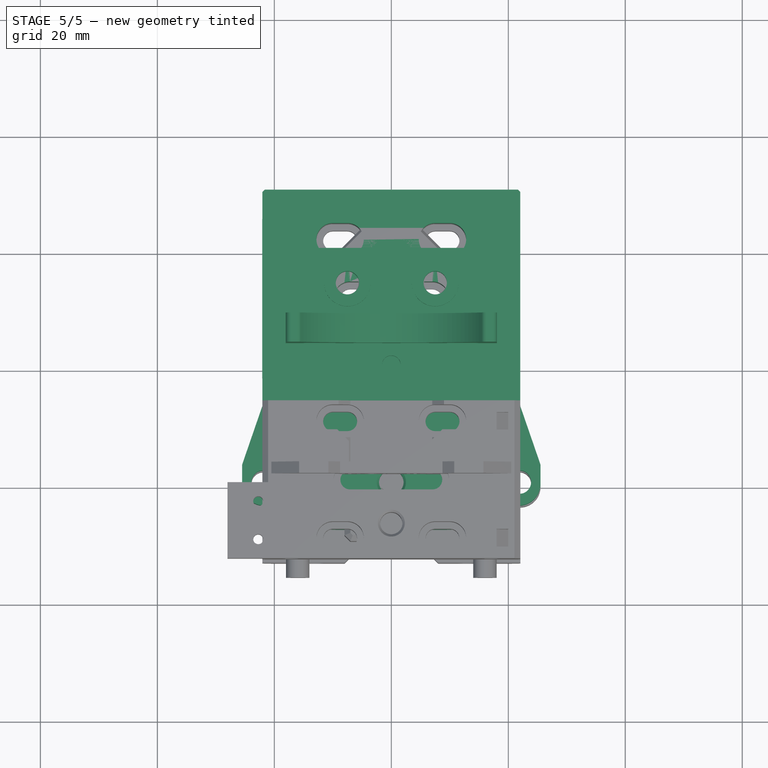
[diagram: stage 5 of 5 — top view after this stage's code; geometry added in this stage tinted green]
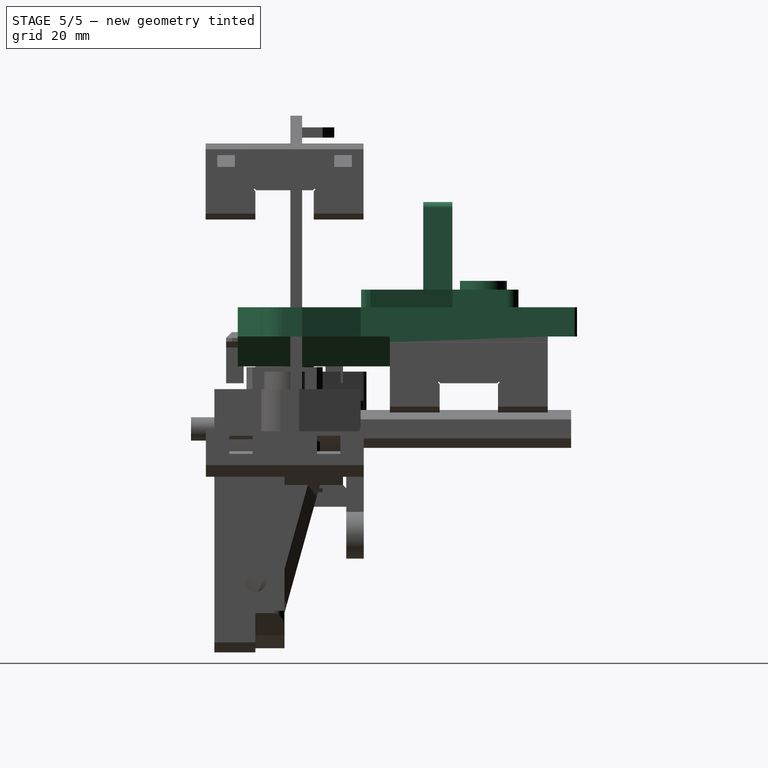
[diagram: stage 5 of 5 — right view after this stage's code; geometry added in this stage tinted green]
FEATURE [Part::Feature] Body001
  Placement = pos=(0,0,7.88) rot=(0,0,1;0rad)
  shape: bbox 44.1 x 53 x 18 mm, 98 faces (baked)
FEATURE [Part::Feature] Part__Feature002002  label="top_mgn013"
  Placement = pos=(-0.00422634,31.5035,0.00126971) rot=(0,0,1;0rad)
  shape: bbox 44.1 x 27 x 13 mm, 69 faces (baked)
FEATURE [Part::Box] Box001  label="Cube001"
  AttacherType = Attacher::AttachEngine3D
  Height = 32
  Length = 60
  Placement = pos=(-28,-19,0) rot=(0,0,1;0rad)
  Width = 37
FEATURE [Part::MultiCommon] Common
  Shapes = -> [Box001,Body001]
FEATURE [Part::Feature] Part__Feature112001004  label="Nema-015"
  Placement = pos=(-0.02,-25.5007,41.66) rot=(1,0,0;1.5708rad)
  shape: bbox 50.9 x 23.5 x 36.5 mm, 227 faces (baked)
FEATURE [Part::Feature] Fusion036012039011002025018010027003  label="sherpa-knob001"
  Placement = pos=(28.33,-36.7,62.6) rot=(0,-1,0;1.5708rad)
  shape: bbox 23.19 x 12.15 x 12.15 mm, 2718 faces (baked)
FEATURE [Part::Feature] Chamfer005021077002002  label="sherpa-body-back001"
  Placement = pos=(-4.3,-26.5,53) rot=(1,0,0;1.5708rad)
  shape: bbox 51.31 x 18.93 x 37.37 mm, 701 faces (baked)
FEATURE [Part::Feature] Part__Feature112001005  label="sherpa-body-mid001"
  Placement = pos=(-4.3,-19.5,53) rot=(1,0,0;1.5708rad)
  shape: bbox 51.24 x 9.996 x 47.65 mm, 527 faces (baked)
FEATURE [Part::Feature] Part__Feature112001006  label="sherpa-body-front001"
  Placement = pos=(-4.32,-44,53) rot=(1,0,0;1.5708rad)
  shape: bbox 24.8 x 3.9 x 26.5 mm, 96 faces (baked)
FEATURE [Part::Feature] Part__Feature112001007  label="sherpa-arm001"
  Placement = pos=(-4.32,-30.5,53) rot=(1,0,0;1.5708rad)
  shape: bbox 10.86 x 21.68 x 38.76 mm, 332 faces (baked)
FEATURE [App::Part] Part  label="sherpa-mini"
  Group = -> [Part__Feature112001004,Part__Feature112001005,Chamfer005021077002002,Part__Feature112001006,Part__Feature112001007,Fusion036012039011002025018010027003]
  Origin = -> Origin
  Placement = pos=(0,32.5,-37.5) rot=(0,0,1;0rad)
FEATURE [Part::Box] Box002  label="Cube002"
  AttacherType = Attacher::AttachEngine3D
  Height = 5
  Length = 51
  Placement = pos=(-25.5,-4,13) rot=(0,0,1;0rad)
  Width = 17
FEATURE [Part::Fillet] Fillet
  Base = -> Box002
  Edges = 2 edges r=3.7: [Edge1,Edge5]
FEATURE [Part::Chamfer] Chamfer
  Base = -> Fillet
  Edges = 1 edges: [Edge13 r1=3.45 r2=10]
FEATURE [Part::Chamfer] Chamfer005021077002003
  Base = -> Chamfer
  Edges = 1 edges: [Edge10 r1=3.45 r2=10]
FEATURE [Part::Feature] Part__Feature002002_cs
  shape: bbox 44.1 x 27 x 3e-07 mm, 0 faces, 0 solids (baked)
FEATURE [Part::Extrusion] Extrude
  Base = -> Part__Feature002002_cs
  Dir = (0,0,1)
  DirMode = 2
  FaceMakerClass = Part::FaceMakerBullseye
  LengthFwd = 6.1
  LengthRev = 0
  Placement = pos=(0.09,0,0.4) rot=(0,0,1;0rad)
  Solid = true
  Symmetric = false
FEATURE [Part::Box] Box003  label="Cube003"
  AttacherType = Attacher::AttachEngine3D
  Height = 5
  Length = 44.1
  Placement = pos=(-22.05,13,13) rot=(0,0,1;0rad)
  Width = 5.1
FEATURE [Part::Box] Box004  label="Cube004"
  AttacherType = Attacher::AttachEngine3D
  Height = 5
  Length = 44.1
  Placement = pos=(-22.05,44.9,13) rot=(0,0,1;0rad)
  Width = 5.1
FEATURE [Part::Chamfer] Chamfer005021077002004
  Base = -> Box004
  Edges = 2 edges r=0.4: [Edge3,Edge7]
FEATURE [Part::MultiFuse] Fusion
  Shapes = -> [Chamfer005021077002004,Box003,Extrude,Chamfer005021077002003,Common,Part__Feature002002]
FEATURE [Part::Cylinder] Cylinder
  Angle = 360
  AttacherType = Attacher::AttachEngine3D
  Height = 21
  Radius = 2.1
FEATURE [Part::Cylinder] Cylinder001
  Angle = 360
  AttacherType = Attacher::AttachEngine3D
  Height = 27
  Placement = pos=(-21.9,5e-15,0) rot=(0,0,-1;1.5708rad)
  Radius = 2
FEATURE [Part::Cylinder] Cylinder002
  Angle = 360
  AttacherType = Attacher::AttachEngine3D
  Height = 27
  Placement = pos=(21.9,4.9e-15,0) rot=(0,0,-1;1.5708rad)
  Radius = 2
FEATURE [Part::MultiFuse] Fusion036012039011002025018010027004
  Shapes = -> [Cylinder002,Cylinder001]
FEATURE [Part::Box] Box005  label="Cube005"
  AttacherType = Attacher::AttachEngine3D
  Height = 18
  Length = 36.1
  Placement = pos=(-18.05,13.5,18) rot=(0,0,1;0rad)
  Width = 5
FEATURE [Part::Cylinder] Cylinder003
  Angle = 360
  AttacherType = Attacher::AttachEngine3D
  Height = 10
  Placement = pos=(0,10.3,45.66) rot=(-1,0,0;1.5708rad)
  Radius = 18.5
FEATURE [Part::Box] Box006  label="Cube006"
  AttacherType = Attacher::AttachEngine3D
  Height = 3
  Length = 44.1
  Placement = pos=(-22.05,13.1,18) rot=(0,0,1;0rad)
  Width = 15.6
FEATURE [Part::Cut] Cut002
  Base = -> Box005
  Tool = -> Cylinder003
FEATURE [Part::Cylinder] Cylinder004
  Angle = 360
  AttacherType = Attacher::AttachEngine3D
  Height = 10
  Placement = pos=(0,10.3,45.66) rot=(-1,0,0;1.5708rad)
  Radius = 21.5
FEATURE [Part::Box] Box007  label="Cube007"
  AttacherType = Attacher::AttachEngine3D
  Height = 8
  Length = 3.1
  Placement = pos=(-1.55,13.5,18) rot=(0,0,1;0rad)
  Width = 5
FEATURE [Part::Box] Box008  label="Cube008"
  AttacherType = Attacher::AttachEngine3D
  Height = 18
  Length = 30.1
  Placement = pos=(-15.05,13.5,21) rot=(0,0,1;0rad)
  Width = 5
FEATURE [Part::Cut] Cut003
  Base = -> Box008
  Tool = -> Cylinder004
FEATURE [Part::Fillet] Fillet001003
  Base = -> Cut003
  Edges = 4 edges r=1: [Edge2,Edge4,Edge8,Edge12]
FEATURE [Part::Fillet] Fillet001004
  Base = -> Cut002
  Edges = 4 edges r=1: [Edge2,Edge11,Edge17,Edge18]
FEATURE [Part::Box] Box009  label="Cube009"
  AttacherType = Attacher::AttachEngine3D
  Height = 9
  Length = 3.1
  Placement = pos=(-9.55,13.5,18) rot=(0,0,1;0rad)
  Width = 5
FEATURE [Part::Box] Box010  label="Cube010"
  AttacherType = Attacher::AttachEngine3D
  Height = 9
  Length = 3.1
  Placement = pos=(6.45,13.5,18) rot=(0,0,1;0rad)
  Width = 5
FEATURE [Part::Cylinder] Cylinder005
  Angle = 360
  AttacherType = Attacher::AttachEngine3D
  Height = 10
  Placement = pos=(0,20,14) rot=(0,0,1;0rad)
  Radius = 2
FEATURE [Part::Cylinder] Cylinder006
  Angle = 360
  AttacherType = Attacher::AttachEngine3D
  Height = 10
  Placement = pos=(0,20,18) rot=(0,0,1;0rad)
  Radius = 1.6
FEATURE [Part::Fillet] Fillet001005
  Base = -> Box006
  Edges = 2 edges r=1: [Edge1,Edge5]
FEATURE [Part::Cylinder] Cylinder007
  Angle = 360
  AttacherType = Attacher::AttachEngine3D
  Height = 10.12
  Placement = pos=(0,0,7.88) rot=(0,0,1;0rad)
  Radius = 4.1
FEATURE [Part::Cut] Cut
  Base = -> Fusion
  Tool = -> Fusion036012039011002025018010027004
FEATURE [Part::MultiFuse] Fusion036012039011002025018010027007
  Shapes = -> [Cylinder007,Cut]
FEATURE [Part::Cut] Cut006
  Base = -> Fusion036012039011002025018010027007
  Tool = -> Cylinder
FEATURE [Part::Cut] Cut007
  Base = -> Cut006
  Tool = -> Cylinder005
FEATURE [Part::Chamfer] Chamfer005021077002006  label="top-plate-tall"
  Base = -> Cut007
  Edges = 2 edges r=0.4: [Edge19,Edge48]
FEATURE [Part::Box] Box011  label="Cube011"
  AttacherType = Attacher::AttachEngine3D
  Height = 3
  Length = 28.1
  Placement = pos=(-14.05,28,18) rot=(0,0,1;0rad)
  Width = 12
FEATURE [Part::Cylinder] Cylinder008
  Angle = 360
  AttacherType = Attacher::AttachEngine3D
  Height = 4.5
  Placement = pos=(-7.5,34,18) rot=(0,0,1;0rad)
  Radius = 4
FEATURE [Part::Cylinder] Cylinder009
  Angle = 360
  AttacherType = Attacher::AttachEngine3D
  Height = 4.5
  Placement = pos=(7.5,34,18) rot=(0,0,1;0rad)
  Radius = 4
FEATURE [Part::Cylinder] Cylinder010
  Angle = 360
  AttacherType = Attacher::AttachEngine3D
  Height = 4.5
  Placement = pos=(7.5,34,18) rot=(0,0,1;0rad)
  Radius = 2
FEATURE [Part::Cylinder] Cylinder011
  Angle = 360
  AttacherType = Attacher::AttachEngine3D
  Height = 4.5
  Placement = pos=(-7.5,34,18) rot=(0,0,1;0rad)
  Radius = 2
FEATURE [Part::Fillet] Fillet001006
  Base = -> Box011
  Edges = 2 edges r=2: [Edge3,Edge7]
FEATURE [Part::MultiFuse] Fusion036012039011002025018010027008
  Shapes = -> [Cylinder009,Cylinder008,Fillet001006]
FEATURE [Part::MultiFuse] Fusion036012039011002025018010027009
  Shapes = -> [Cylinder011,Cylinder010]
FEATURE [Part::Cut] Cut005002
  Base = -> Fusion036012039011002025018010027008
  Tool = -> Fusion036012039011002025018010027009
FEATURE [Part::Box] Box012  label="Cube012"
  AttacherType = Attacher::AttachEngine3D
  Height = 6
  Length = 31
  Placement = pos=(-15.5,13.2,24.2) rot=(0,0,1;0rad)
  Width = 6
FEATURE [Part::MultiFuse] Fusion036012039011002025018010027010
  Shapes = -> [Box010,Box007,Box009]
FEATURE [Part::MultiFuse] Fusion036012039011002025018010027011
  Shapes = -> [Box012,Fusion036012039011002025018010027010]
FEATURE [Part::Cut] Cut005003
  Base = -> Fillet001003
  Tool = -> Fusion036012039011002025018010027011
FEATURE [Part::Fillet] Fillet001007
  Base = -> Cut005003
  Edges = 2 edges r=1: [Edge2,Edge45]
FEATURE [Part::Cut] Cut005004
  Base = -> Fillet001004
  Placement = pos=(0,10.2,0) rot=(0,0,1;0rad)
  Tool = -> Fillet001007
FEATURE [Part::Chamfer] Chamfer005021077002006002
  Base = -> Fillet001005
  Edges = 1 edges: [Edge13 r1=4 r2=14]
FEATURE [Part::Chamfer] Chamfer005021077002006003
  Base = -> Chamfer005021077002006002
  Edges = 1 edges: [Edge9 r1=4 r2=14]
FEATURE [Part::MultiFuse] Fusion036012039011002025018010027012
  Shapes = -> [Chamfer005021077002006003,Cut005004,Cut005002]
FEATURE [Part::Cut] Cut005005
  Base = -> Fusion036012039011002025018010027012
  Tool = -> Cylinder006
FEATURE [Part::Feature] Fusion036012039011002025018010027013001002002001001
  shape: bbox 40.01 x 23.2 x 43.11 mm, 108 faces (baked)
FEATURE [Part::Feature] Fusion036012039011002025018010027013001002002001002001001
  shape: bbox 40.01 x 26.05 x 46.11 mm, 140 faces (baked)
FEATURE [Part::Box] Box013  label="right-select001"
  AttacherType = Attacher::AttachEngine3D
  Height = 45
  Length = 30
  Placement = pos=(0,-17,-41) rot=(0,0,1;0rad)
  Width = 36
FEATURE [Part::Box] Box014  label="right-select002"
  AttacherType = Attacher::AttachEngine3D
  Height = 45
  Length = 30
  Placement = pos=(0,-17,-41) rot=(0,0,1;0rad)
  Width = 36
FEATURE [Part::MultiCommon] Common002
  Shapes = -> [Fusion036012039011002025018010027013001002002001002001001,Box013]
FEATURE [Part::MultiCommon] Common003
  Shapes = -> [Fusion036012039011002025018010027013001002002001001,Box014]
FEATURE [Part::MultiFuse] Fusion036012039011002025018010027013001002002001002001003
  Placement = pos=(0,0,0.1) rot=(0,0,1;0rad)
  Shapes = -> [Part__Mirroring001001,Common002]
FEATURE [Part::MultiFuse] Fusion036012039011002025018010027013001002002001002001004
  Shapes = -> [Common003,Part__Mirroring002002]
FEATURE [Part::Feature] Fusion036012039011002025018010027013001002002001002001005  label="probe-slot001"
  shape: bbox 50 x 3.8 x 11.8 mm, 12 faces, 4 solids (baked)
FEATURE [Part::Feature] Fusion036012039011002025018010027013001002002001002001006  label="probe-slot002"
  shape: bbox 50 x 3.8 x 11.8 mm, 12 faces, 4 solids (baked)
FEATURE [Part::Cut] Cut005005001003  label="dragon-base"
  Base = -> Fusion036012039011002025018010027013001002002001002001004
  Tool = -> Fusion036012039011002025018010027013001002002001002001005
FEATURE [Part::Cut] Cut005005001004  label="cooper-head-base"
  Base = -> Fusion036012039011002025018010027013001002002001002001003
  Tool = -> Fusion036012039011002025018010027013001002002001002001006
FEATURE [Part::Feature] Chamfer005021077002006007006  label="sherpa-mount-plate-base002"
  shape: bbox 51 x 25 x 5.003 mm, 26 faces (baked)
FEATURE [Part::Cylinder] Cylinder020
  Angle = 360
  AttacherType = Attacher::AttachEngine3D
  Height = 10
  Placement = pos=(0,0,-8.2) rot=(0,0,1;0rad)
  Radius = 4
FEATURE [Part::Cylinder] Cylinder025
  Angle = 360
  AttacherType = Attacher::AttachEngine3D
  Height = 10
  Placement = pos=(0,0,-8.2) rot=(0,0,1;0rad)
  Radius = 2.15
FEATURE [Part::Cut] Cut005005001012
  Base = -> Cylinder020
  Tool = -> Cylinder025
FEATURE [Part::MultiFuse] Fusion036012039011002025018010027013001002002001002001018
  Shapes = -> [Cut005005001012,Cut005005001003]
FEATURE [Part::Chamfer] Chamfer005021077002006007009
  Base = -> Chamfer005021077002006007008
  Edges = 1 edges: [Edge25 r1=9.9 r2=5.5]
FEATURE [Part::MultiFuse] Fusion036012039011002025018010027013001002002001002001021
  Shapes = -> [Chamfer005021077002006007009,Fusion036012039011002025018010027013001002002001002001018]
FEATURE [Part::Chamfer] Chamfer005021077002006007010
  Base = -> Fusion036012039011002025018010027013001002002001002001021
  Edges = 2 edges r=0.2: [Edge19,Edge22]
FEATURE [Part::Chamfer] Chamfer005021077002006007011  label="dragon-face-compacr-r1"
  Base = -> Chamfer005021077002006007010
  Edges = 16 edges r=0.2: [Edge2,Edge3,Edge4,Edge5,Edge6,Edge7,Edge8,Edge9,Edge10,Edge11,Edge12,Edge13,Edge14,Edge15,Edge16,Edge17]
FEATURE [Part::Feature] Fusion036012039011002025018010027013001002002001002001029004001010001001
  shape: bbox 41.5 x 7.5 x 53.5 mm, 768 faces (baked)
FEATURE [Part::Chamfer] Chamfer005021077002006007019003014  label="face-plate-compact-r1"
  Base = -> Fusion036012039011002025018010027013001002002001002001029004001010001001
  Edges = 21 edges r=0.4: [Edge1,Edge5,Edge10,Edge11,Edge14,Edge19,Edge20,Edge24,Edge28,Edge30,Edge33,Edge36,Edge40,Edge42,Edge45,Edge47,Edge48,Edge294,Edge295,Edge296,Edge297]
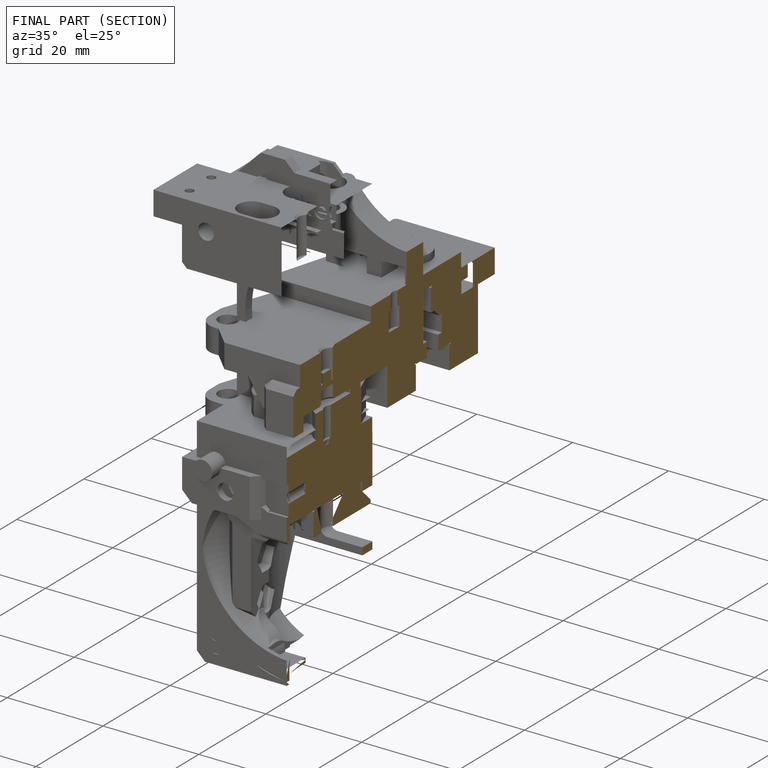
[diagram: finished part — half-section view (interior)]
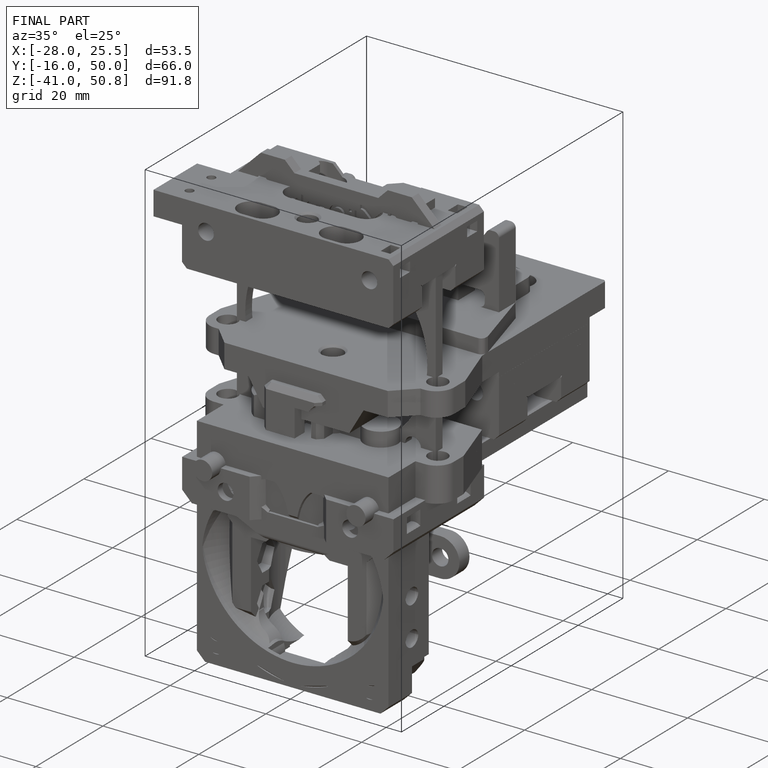
[diagram: finished part — iso view with bounding-box wireframe]
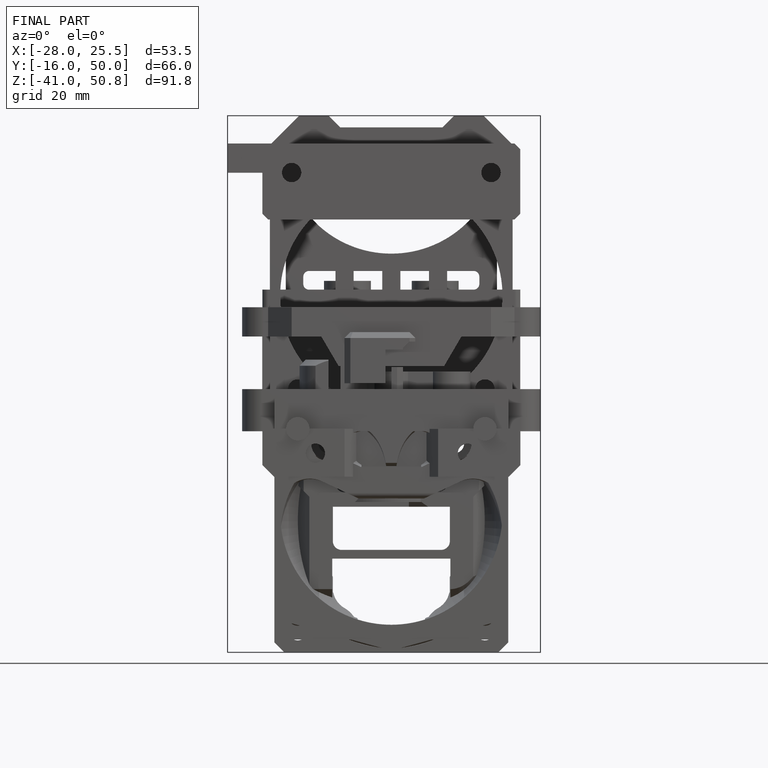
[diagram: finished part — front view with bounding-box wireframe]
